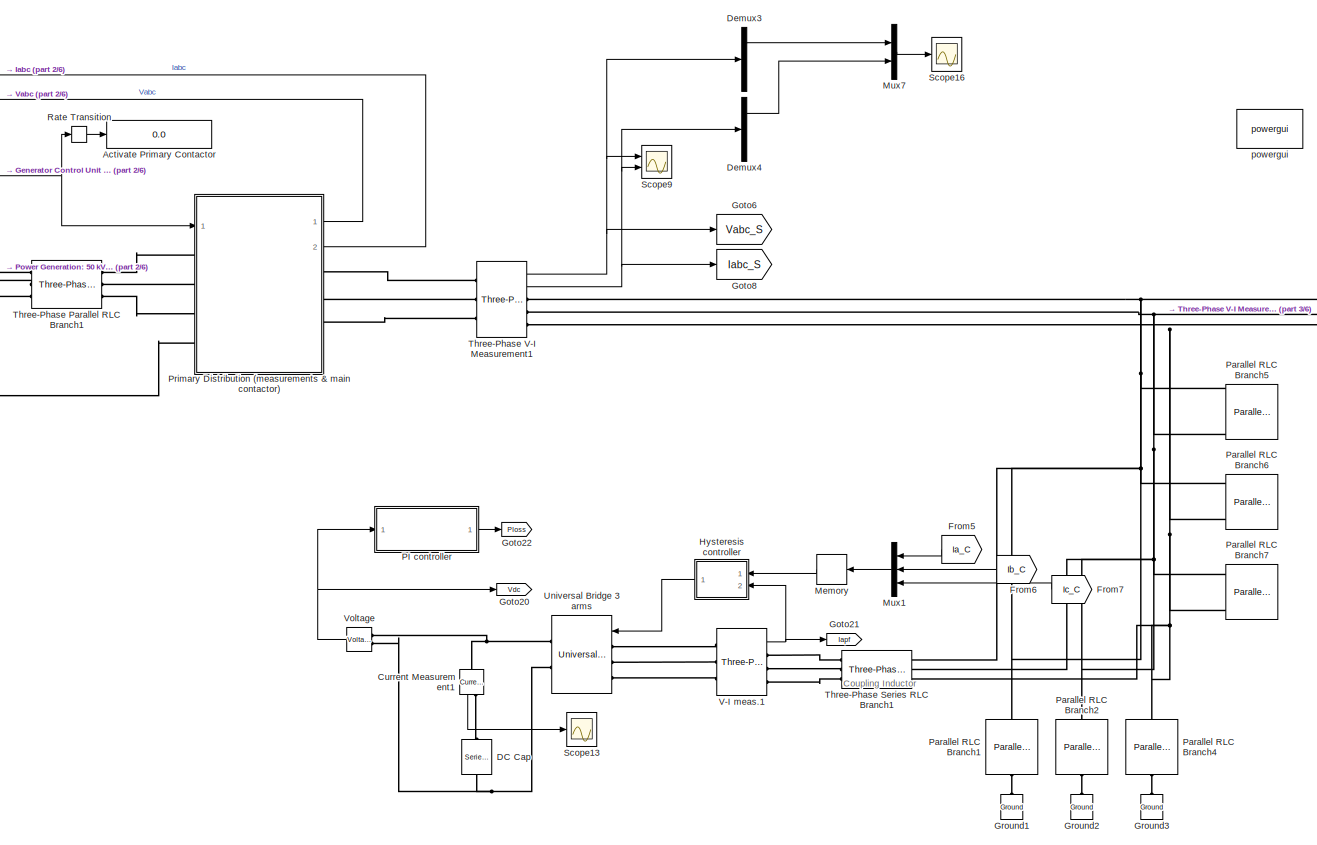
[diagram: root canvas - part 1/6, top center region]
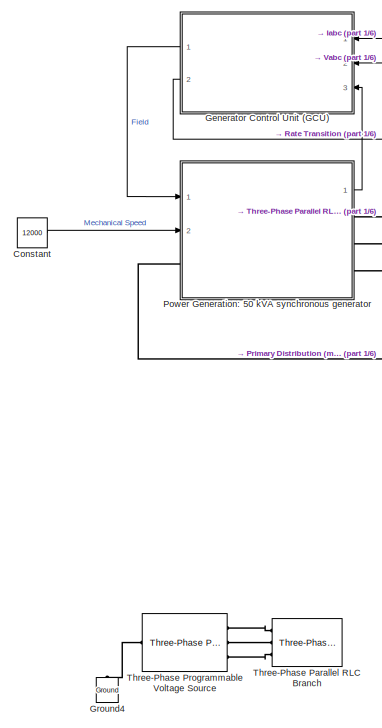
[diagram: root canvas - part 2/6, top left region]
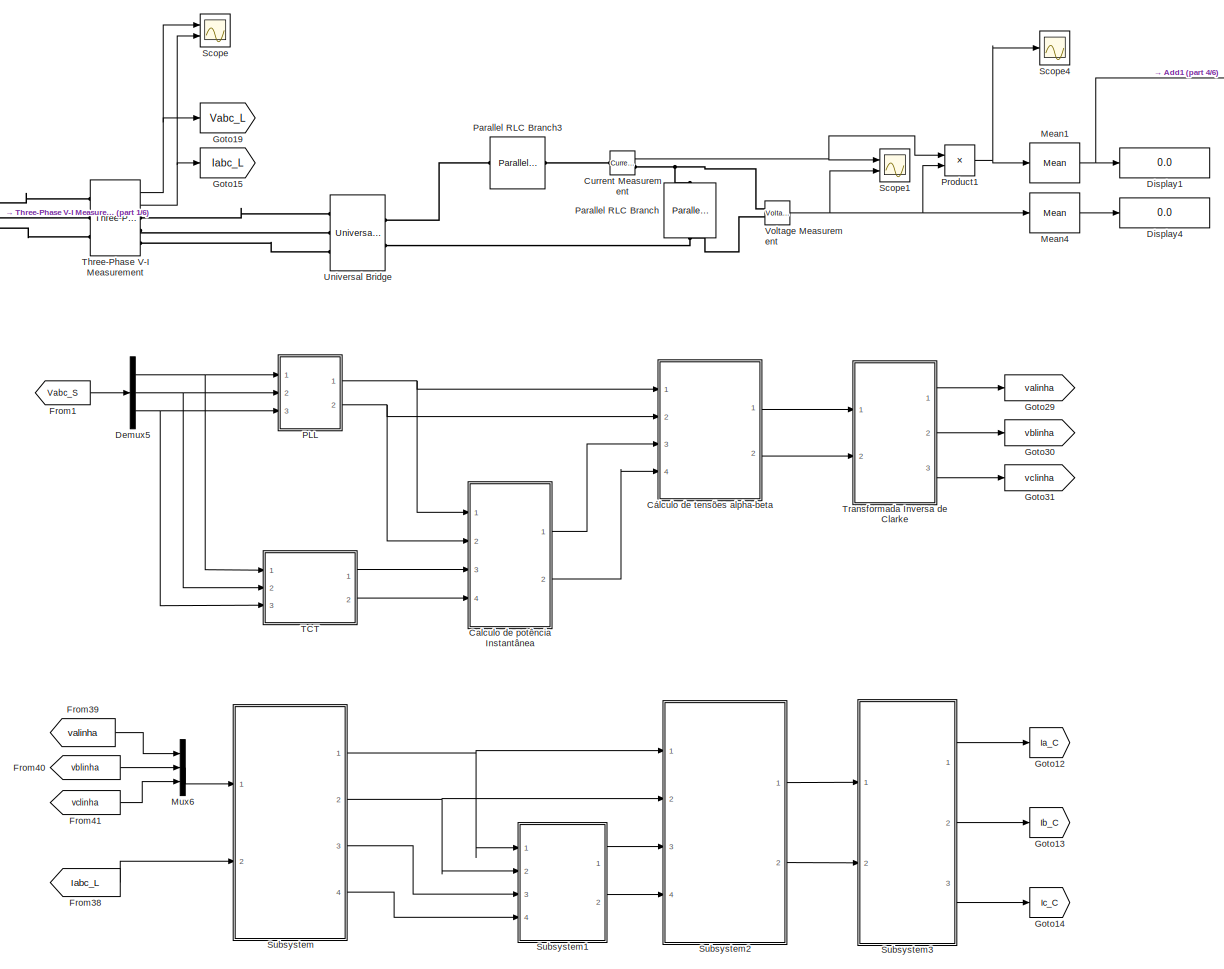
[diagram: root canvas - part 3/6, middle right region]
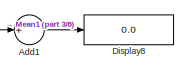
[diagram: root canvas - part 4/6, top right region]
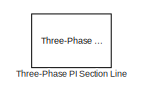
[diagram: root canvas - part 5/6, middle left region]
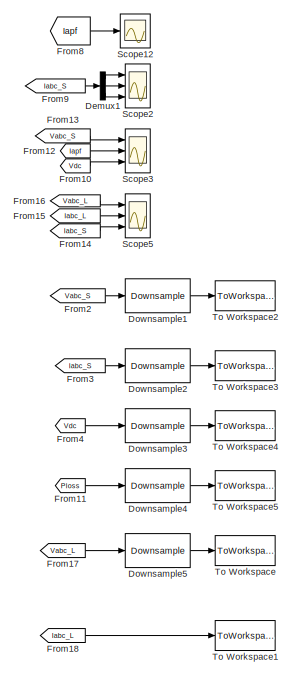
[diagram: root canvas - part 6/6, bottom left region]
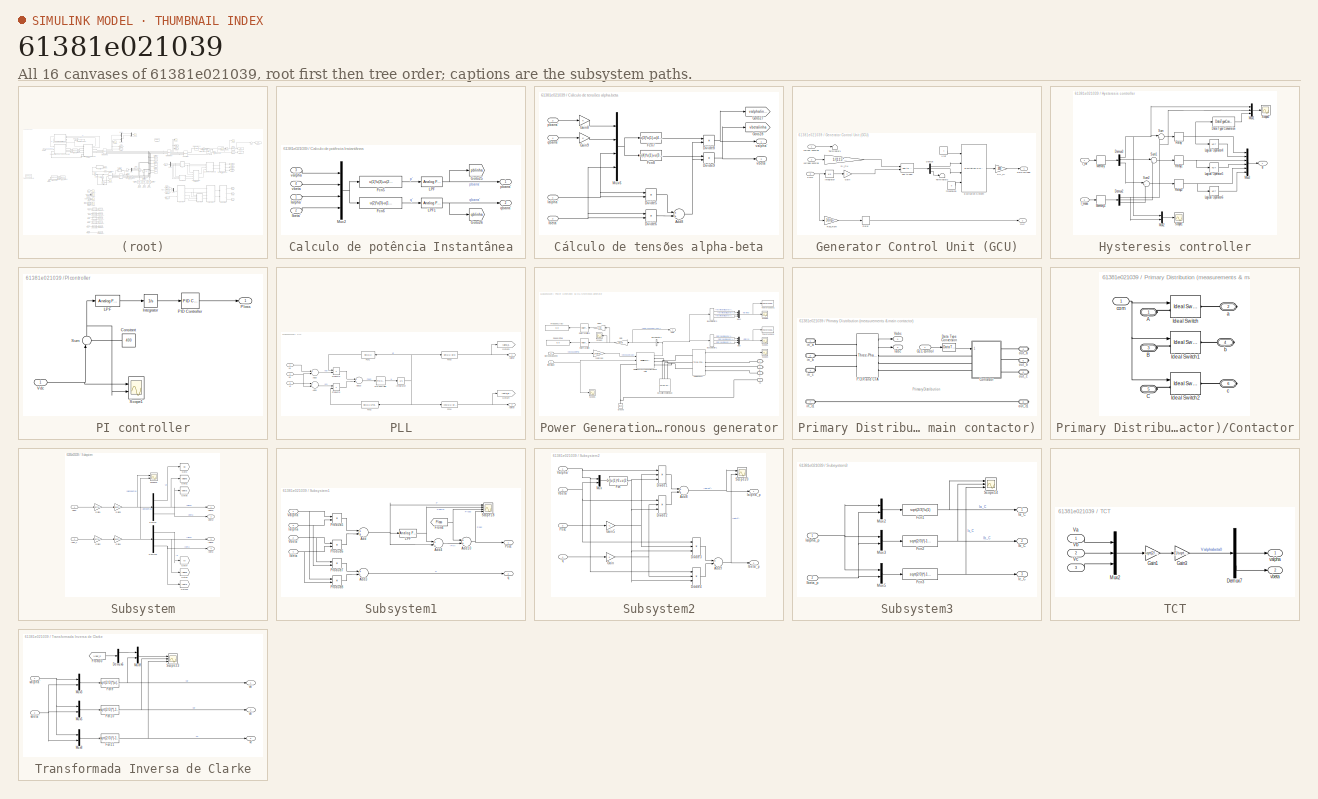
[diagram: thumbnail index - all 16 canvases of the model, root first then tree order]
MODEL slx_61381e021039
KIND model
BLOCK [Display] Activate Primary Contactor
  Decimation = 1
  Ports = [1]
  SampleTime = 1e-2
BLOCK [Sum] Add1
  InputSameDT = off
  Inputs = +
  OutDataTypeStr = Inherit: Inherit via internal rule
  Ports = [1, 1]
  SaturateOnIntegerOverflow = off
BLOCK [SubSystem] Calculo de potência Instantânea
  Ports = [4, 2]
  RequestExecContextInheritance = off
BLOCK [Fcn] Calculo de potência Instantânea/Fcn5
  Expr = u(1)*u(3)+u(2)*u(4)
BLOCK [Fcn] Calculo de potência Instantânea/Fcn6
  Expr = u(2)*u(3)-u(1)*u(4)
BLOCK [Goto] Calculo de potência Instantânea/Goto25
  GotoTag = pblinha
  TagVisibility = global
BLOCK [Goto] Calculo de potência Instantânea/Goto26
  GotoTag = qblinha
  TagVisibility = global
BLOCK [Inport] Calculo de potência Instantânea/Ialpha'
  IconDisplay = Port number
BLOCK [Inport] Calculo de potência Instantânea/Ibeta'
  IconDisplay = Port number
  Port = 2
BLOCK [Reference] Calculo de potência Instantânea/LPF  REF=dsparch4/Analog
Filter Design
  N = 5
  Ports = [1, 1]
  Rp = 2
  Rs = 40
  SourceBlock = dsparch4/Analog\nFilter Design
  SourceType = Analog Filter Design
  Whi = 80
  Wlo = 2*pi*100
  filttype = Lowpass
  method = Butterworth
BLOCK [Reference] Calculo de potência Instantânea/LPF1  REF=dsparch4/Analog
Filter Design
  N = 5
  Ports = [1, 1]
  Rp = 2
  Rs = 40
  SourceBlock = dsparch4/Analog\nFilter Design
  SourceType = Analog Filter Design
  Whi = 80
  Wlo = 2*pi*100
  filttype = Lowpass
  method = Butterworth
BLOCK [Mux] Calculo de potência Instantânea/Mux2
  DisplayOption = bar
  Ports = [4, 1]
BLOCK [Outport] Calculo de potência Instantânea/pbarra'
  IconDisplay = Port number
BLOCK [Outport] Calculo de potência Instantânea/qbarra'
  IconDisplay = Port number
  Port = 2
BLOCK [Inport] Calculo de potência Instantânea/valpha
  IconDisplay = Port number
  Port = 3
BLOCK [Inport] Calculo de potência Instantânea/vbeta
  IconDisplay = Port number
  Port = 4
BLOCK [Constant] Constant
  Value = 12000
BLOCK [Reference] Current Measurement  REF=powerlib/Measurements/Current Measurement
  OutputType = Complex
  PSBequivalent = 0
  PhasorSimulation = off
  Ports = [0, 1, 0, 0, 0, 1, 1]
  SourceBlock = powerlib/Measurements/Current Measurement
  SourceType = Current Measurement
  UserDataPersistent = on
BLOCK [Reference] Current Measurement1  REF=powerlib/Measurements/Current Measurement
  OutputType = Complex
  PSBequivalent = 0
  PhasorSimulation = off
  Ports = [0, 1, 0, 0, 0, 1, 1]
  SourceBlock = powerlib/Measurements/Current Measurement
  SourceType = Current Measurement
  UserDataPersistent = on
BLOCK [SubSystem] Cálculo de tensões alpha-beta
  Ports = [4, 2]
  RequestExecContextInheritance = off
BLOCK [Sum] Cálculo de tensões alpha-beta/Add8
  InputSameDT = off
  OutDataTypeStr = Inherit: Inherit via internal rule
  Ports = [2, 1]
  SaturateOnIntegerOverflow = off
BLOCK [Product] Cálculo de tensões alpha-beta/Divide5
  InputSameDT = off
  Inputs = **
  OutDataTypeStr = Inherit: Inherit via internal rule
  Ports = [2, 1]
  RndMeth = Floor
  SaturateOnIntegerOverflow = off
BLOCK [Product] Cálculo de tensões alpha-beta/Divide6
  InputSameDT = off
  Inputs = **
  OutDataTypeStr = Inherit: Inherit via internal rule
  Ports = [2, 1]
  RndMeth = Floor
  SaturateOnIntegerOverflow = off
BLOCK [Product] Cálculo de tensões alpha-beta/Divide8
  InputSameDT = off
  Inputs = */
  OutDataTypeStr = Inherit: Inherit via internal rule
  Ports = [2, 1]
  RndMeth = Floor
  SaturateOnIntegerOverflow = off
BLOCK [Product] Cálculo de tensões alpha-beta/Divide9
  InputSameDT = off
  Inputs = */
  OutDataTypeStr = Inherit: Inherit via internal rule
  Ports = [2, 1]
  RndMeth = Floor
  SaturateOnIntegerOverflow = off
BLOCK [Fcn] Cálculo de tensões alpha-beta/Fcn7
  Expr = u(3)*u(1)-u(4)*u(2)
BLOCK [Fcn] Cálculo de tensões alpha-beta/Fcn8
  Expr = u(4)*u(1)+u(3)*u(2)
BLOCK [Gain] Cálculo de tensões alpha-beta/Gain8
  OutDataTypeStr = Inherit: Inherit via internal rule
  ParamDataTypeStr = Inherit: Inherit via internal rule
  SaturateOnIntegerOverflow = off
BLOCK [Gain] Cálculo de tensões alpha-beta/Gain9
  OutDataTypeStr = Inherit: Inherit via internal rule
  ParamDataTypeStr = Inherit: Inherit via internal rule
  SaturateOnIntegerOverflow = off
BLOCK [Goto] Cálculo de tensões alpha-beta/Goto27
  GotoTag = valphalinha
  TagVisibility = global
BLOCK [Goto] Cálculo de tensões alpha-beta/Goto28
  GotoTag = vbetalinha
  TagVisibility = global
BLOCK [Inport] Cálculo de tensões alpha-beta/Ialpha'
  IconDisplay = Port number
BLOCK [Inport] Cálculo de tensões alpha-beta/Ibeta'
  IconDisplay = Port number
  Port = 2
BLOCK [Mux] Cálculo de tensões alpha-beta/Mux6
  DisplayOption = bar
  Ports = [4, 1]
BLOCK [Inport] Cálculo de tensões alpha-beta/pbarra'
  IconDisplay = Port number
  Port = 3
BLOCK [Inport] Cálculo de tensões alpha-beta/qbarra'
  IconDisplay = Port number
  Port = 4
BLOCK [Outport] Cálculo de tensões alpha-beta/valpha'
  IconDisplay = Port number
BLOCK [Outport] Cálculo de tensões alpha-beta/vbeta'
  IconDisplay = Port number
  Port = 2
BLOCK [Reference] DC Cap  REF=powerlib/Elements/Series RLC Branch
  BranchType = C
  Capacitance = 50e-6
  Inductance = 1e-3
  InitialCurrent = 0
  InitialVoltage = 350
  LConnTagsString = __new0
  Measurements = None
  Ports = [0, 0, 0, 0, 0, 1, 1]
  RConnTagsString = __new0
  Resistance = 1
  SetiL0 = off
  Setx0 = off
  SourceBlock = powerlib/Elements/Series RLC Branch
  SourceType = Series RLC Branch
BLOCK [Demux] Demux1
  DisplayOption = bar
  Outputs = 3
  Ports = [1, 3]
BLOCK [Demux] Demux3
  DisplayOption = bar
  Outputs = 3
  Ports = [1, 3]
BLOCK [Demux] Demux4
  DisplayOption = bar
  Outputs = 3
  Ports = [1, 3]
BLOCK [Demux] Demux5
  DisplayOption = bar
  Outputs = 3
  Ports = [1, 3]
BLOCK [Display] Display1
  Decimation = 1
  Ports = [1]
BLOCK [Display] Display4
  Decimation = 1
  Ports = [1]
BLOCK [Display] Display8
  Decimation = 1
  Ports = [1]
BLOCK [Reference] Downsample1  REF=dspsigops/Downsample
  InputProcessing = Elements as channels (sample based)
  N = k
  Ports = [1, 1]
  RateOptions = Enforce single-rate processing
  SourceBlock = dspsigops/Downsample
  SourceType = Downsample
  UserDataPersistent = on
  fmode = Maintain input frame size
  ic = 0
  phase = 0
  smode = Allow multirate
BLOCK [Reference] Downsample2  REF=dspsigops/Downsample
  InputProcessing = Elements as channels (sample based)
  N = k
  Ports = [1, 1]
  RateOptions = Enforce single-rate processing
  SourceBlock = dspsigops/Downsample
  SourceType = Downsample
  UserDataPersistent = on
  fmode = Maintain input frame size
  ic = 0
  phase = 0
  smode = Allow multirate
BLOCK [Reference] Downsample3  REF=dspsigops/Downsample
  InputProcessing = Elements as channels (sample based)
  N = k
  Ports = [1, 1]
  RateOptions = Enforce single-rate processing
  SourceBlock = dspsigops/Downsample
  SourceType = Downsample
  UserDataPersistent = on
  fmode = Maintain input frame size
  ic = 0
  phase = 0
  smode = Allow multirate
BLOCK [Reference] Downsample4  REF=dspsigops/Downsample
  InputProcessing = Elements as channels (sample based)
  N = k
  Ports = [1, 1]
  RateOptions = Enforce single-rate processing
  SourceBlock = dspsigops/Downsample
  SourceType = Downsample
  UserDataPersistent = on
  fmode = Maintain input frame size
  ic = 0
  phase = 0
  smode = Allow multirate
BLOCK [Reference] Downsample5  REF=dspsigops/Downsample
  InputProcessing = Elements as channels (sample based)
  N = k
  Ports = [1, 1]
  RateOptions = Enforce single-rate processing
  SourceBlock = dspsigops/Downsample
  SourceType = Downsample
  UserDataPersistent = on
  fmode = Maintain input frame size
  ic = 0
  phase = 0
  smode = Allow multirate
BLOCK [From] From1
  GotoTag = Vabc_S
  TagVisibility = global
BLOCK [From] From10
  CloseFcn = tagdialog Close
  GotoTag = Vdc
  TagVisibility = global
BLOCK [From] From11
  CloseFcn = tagdialog Close
  GotoTag = Ploss
  TagVisibility = global
BLOCK [From] From12
  CloseFcn = tagdialog Close
  GotoTag = Iapf
  TagVisibility = global
BLOCK [From] From13
  CloseFcn = tagdialog Close
  GotoTag = Vabc_S
  TagVisibility = global
BLOCK [From] From14
  CloseFcn = tagdialog Close
  GotoTag = Iabc_S
  TagVisibility = global
BLOCK [From] From15
  CloseFcn = tagdialog Close
  GotoTag = Iabc_L
  TagVisibility = global
BLOCK [From] From16
  CloseFcn = tagdialog Close
  GotoTag = Vabc_L
  TagVisibility = global
BLOCK [From] From17
  CloseFcn = tagdialog Close
  GotoTag = Vabc_L
  TagVisibility = global
BLOCK [From] From18
  CloseFcn = tagdialog Close
  GotoTag = Iabc_L
  TagVisibility = global
BLOCK [From] From2
  CloseFcn = tagdialog Close
  GotoTag = Vabc_S
  TagVisibility = global
BLOCK [From] From3
  CloseFcn = tagdialog Close
  GotoTag = Iabc_S
  TagVisibility = global
BLOCK [From] From38
  GotoTag = Iabc_L
  TagVisibility = global
BLOCK [From] From39
  GotoTag = valinha
  TagVisibility = global
BLOCK [From] From4
  CloseFcn = tagdialog Close
  GotoTag = Vdc
  TagVisibility = global
BLOCK [From] From40
  GotoTag = vblinha
  TagVisibility = global
BLOCK [From] From41
  GotoTag = vclinha
  TagVisibility = global
BLOCK [From] From5
  GotoTag = Ia_C
  TagVisibility = global
BLOCK [From] From6
  GotoTag = Ib_C
  TagVisibility = global
BLOCK [From] From7
  GotoTag = Ic_C
  TagVisibility = global
BLOCK [From] From8
  GotoTag = Iapf
  TagVisibility = global
BLOCK [From] From9
  CloseFcn = tagdialog Close
  GotoTag = Iabc_S
  TagVisibility = global
BLOCK [SubSystem] Generator Control Unit (GCU)
  Ports = [3, 2]
  RequestExecContextInheritance = off
BLOCK [Demux] Generator Control Unit (GCU)/Demux
  DisplayOption = bar
  Outputs = 3
  Ports = [1, 3]
BLOCK [Reference] Generator Control Unit (GCU)/Excitation System  REF=sps_avr/Excitation System
  Ports = [4, 1]
  SourceBlock = sps_avr/Excitation System
  SourceType = Excitation System
  damp = [ 0.001, 0.1 ]
  exc = [ 1, 0 ]
  lim = [ -2, 2, 0 ]
  reg = [ 300, 0.001 ]
  sat = [ 0, 0 ]
  tgr = [ 0, 0 ]
  tr = 20e-3
  v0 = [1 0]
BLOCK [Outport] Generator Control Unit (GCU)/Field voltage
  IconDisplay = Port number
BLOCK [Outport] Generator Control Unit (GCU)/GLC
  IconDisplay = Port number
  Port = 2
BLOCK [Gain] Generator Control Unit (GCU)/Gain
  Gain = 2
  OutDataTypeStr = Inherit: Inherit via internal rule
  ParamDataTypeStr = Inherit: Inherit via internal rule
  SaturateOnIntegerOverflow = off
BLOCK [Integrator] Generator Control Unit (GCU)/Integrator
  Ports = [1, 1]
BLOCK [Inport] Generator Control Unit (GCU)/PMG
  IconDisplay = Port number
  Port = 3
BLOCK [Gain] Generator Control Unit (GCU)/PU_SI
  Gain = 200
  OutDataTypeStr = Inherit: Inherit via internal rule
  ParamDataTypeStr = Inherit: Inherit via internal rule
  SaturateOnIntegerOverflow = off
BLOCK [Gain] Generator Control Unit (GCU)/Rad_Rpm
  Gain = 30/pi
  OutDataTypeStr = Inherit: Inherit via internal rule
  ParamDataTypeStr = Inherit: Inherit via internal rule
  SaturateOnIntegerOverflow = off
BLOCK [Relay] Generator Control Unit (GCU)/Relay
  OffSwitchValue = 8900
  OnSwitchValue = 9000
BLOCK [Gain] Generator Control Unit (GCU)/SI_PU
  Gain = 1/(115*sqrt(2))
  OutDataTypeStr = Inherit: Inherit via internal rule
  ParamDataTypeStr = Inherit: Inherit via internal rule
  SaturateOnIntegerOverflow = off
BLOCK [Terminator] Generator Control Unit (GCU)/Terminator1
BLOCK [Terminator] Generator Control Unit (GCU)/Terminator2
BLOCK [Constant] Generator Control Unit (GCU)/Vref
BLOCK [Reference] Generator Control Unit (GCU)/abc to dq0  REF=powerlib_meascontrol/Transformations/abc to dq0
  Alignment = 90 degrees behind phase A axis
  Ports = [2, 1]
  SourceBlock = powerlib_meascontrol/Transformations/abc to dq0
  SourceType = abc to dq0 Transformation
BLOCK [Inport] Generator Control Unit (GCU)/current sensing
  IconDisplay = Port number
BLOCK [Constant] Generator Control Unit (GCU)/threshold3
  Value = 0
BLOCK [Inport] Generator Control Unit (GCU)/voltage sensing
  IconDisplay = Port number
  Port = 2
BLOCK [Goto] Goto12
  GotoTag = Ia_C
  TagVisibility = global
BLOCK [Goto] Goto13
  GotoTag = Ib_C
  TagVisibility = global
BLOCK [Goto] Goto14
  GotoTag = Ic_C
  TagVisibility = global
BLOCK [Goto] Goto15
  GotoTag = Iabc_L
  TagVisibility = global
BLOCK [Goto] Goto19
  GotoTag = Vabc_L
  TagVisibility = global
BLOCK [Goto] Goto20
  GotoTag = Vdc
  TagVisibility = global
BLOCK [Goto] Goto21
  GotoTag = Iapf
  TagVisibility = global
BLOCK [Goto] Goto22
  GotoTag = Ploss
  TagVisibility = global
BLOCK [Goto] Goto29
  GotoTag = valinha
  TagVisibility = global
BLOCK [Goto] Goto30
  GotoTag = vblinha
  TagVisibility = global
BLOCK [Goto] Goto31
  GotoTag = vclinha
  TagVisibility = global
BLOCK [Goto] Goto6
  GotoTag = Vabc_S
  TagVisibility = global
BLOCK [Goto] Goto8
  GotoTag = Iabc_S
  TagVisibility = global
BLOCK [Reference] Ground1  REF=powerlib/Elements/Ground
  LConnTagsString = a
  Ports = [0, 0, 0, 0, 0, 1]
  SourceBlock = powerlib/Elements/Ground
  SourceType = Ground
BLOCK [Reference] Ground2  REF=powerlib/Elements/Ground
  LConnTagsString = a
  Ports = [0, 0, 0, 0, 0, 1]
  SourceBlock = powerlib/Elements/Ground
  SourceType = Ground
BLOCK [Reference] Ground3  REF=powerlib/Elements/Ground
  LConnTagsString = a
  Ports = [0, 0, 0, 0, 0, 1]
  SourceBlock = powerlib/Elements/Ground
  SourceType = Ground
BLOCK [Reference] Ground4  REF=powerlib/Elements/Ground
  LConnTagsString = a
  Ports = [0, 0, 0, 0, 0, 1]
  SourceBlock = powerlib/Elements/Ground
  SourceType = Ground
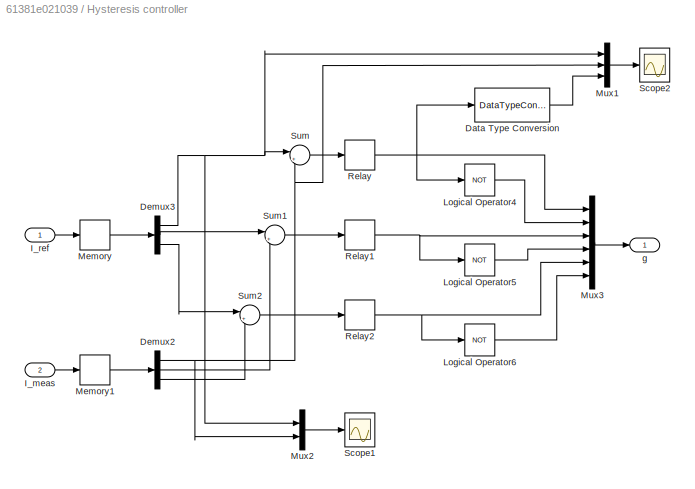
BLOCK [SubSystem] Hysteresis controller
  Ports = [2, 1]
  RequestExecContextInheritance = off
BLOCK [DataTypeConversion] Hysteresis controller/Data Type Conversion
  RndMeth = Floor
  SaturateOnIntegerOverflow = off
BLOCK [Demux] Hysteresis controller/Demux2
  DisplayOption = bar
  Outputs = 3
  Ports = [1, 3]
BLOCK [Demux] Hysteresis controller/Demux3
  DisplayOption = bar
  Outputs = 3
  Ports = [1, 3]
BLOCK [Inport] Hysteresis controller/I_meas
  IconDisplay = Port number
  Port = 2
BLOCK [Inport] Hysteresis controller/I_ref
  IconDisplay = Port number
BLOCK [Logic] Hysteresis controller/Logical Operator4
  AllPortsSameDT = off
  Operator = NOT
  OutDataTypeStr = boolean
  Ports = [1, 1]
BLOCK [Logic] Hysteresis controller/Logical Operator5
  AllPortsSameDT = off
  Operator = NOT
  OutDataTypeStr = boolean
  Ports = [1, 1]
BLOCK [Logic] Hysteresis controller/Logical Operator6
  AllPortsSameDT = off
  Operator = NOT
  OutDataTypeStr = boolean
  Ports = [1, 1]
BLOCK [Memory] Hysteresis controller/Memory
BLOCK [Memory] Hysteresis controller/Memory1
BLOCK [Mux] Hysteresis controller/Mux1
  DisplayOption = bar
  Inputs = 3
  Ports = [3, 1]
BLOCK [Mux] Hysteresis controller/Mux2
  DisplayOption = bar
  Inputs = 2
  Ports = [2, 1]
BLOCK [Mux] Hysteresis controller/Mux3
  DisplayOption = bar
  Inputs = 6
  Ports = [6, 1]
BLOCK [Relay] Hysteresis controller/Relay
  InputProcessing = Elements as channels (sample based)
  OffSwitchValue = -0.05
  OnSwitchValue = 0.05
  OutDataTypeStr = Inherit: Inherit via back propagation
BLOCK [Relay] Hysteresis controller/Relay1
  InputProcessing = Elements as channels (sample based)
  OffSwitchValue = -0.05
  OnSwitchValue = 0.05
  OutDataTypeStr = Inherit: Inherit via back propagation
BLOCK [Relay] Hysteresis controller/Relay2
  InputProcessing = Elements as channels (sample based)
  OffSwitchValue = -0.05
  OnSwitchValue = 0.05
  OutDataTypeStr = Inherit: Inherit via back propagation
BLOCK [Scope] Hysteresis controller/Scope1
  Floating = off
  NumInputPorts = 1
  Ports = [1]
  SaveName = ScopeData30
  ShowLegends = off
  YMax = 5.5
  YMin = -4.5
  ZoomMode = xonly
BLOCK [Scope] Hysteresis controller/Scope2
  Floating = off
  NumInputPorts = 1
  Ports = [1]
  SaveName = ScopeData6
  ShowLegends = off
  YMax = 5.5
  YMin = -4.5
  ZoomMode = xonly
BLOCK [Sum] Hysteresis controller/Sum
  IconShape = round
  InputSameDT = off
  Inputs = |+-
  OutDataTypeStr = Inherit: Inherit via internal rule
  Ports = [2, 1]
  SaturateOnIntegerOverflow = off
BLOCK [Sum] Hysteresis controller/Sum1
  IconShape = round
  InputSameDT = off
  Inputs = |+-
  OutDataTypeStr = Inherit: Inherit via internal rule
  Ports = [2, 1]
  SaturateOnIntegerOverflow = off
BLOCK [Sum] Hysteresis controller/Sum2
  IconShape = round
  InputSameDT = off
  Inputs = |+-
  OutDataTypeStr = Inherit: Inherit via internal rule
  Ports = [2, 1]
  SaturateOnIntegerOverflow = off
BLOCK [Outport] Hysteresis controller/g
  IconDisplay = Port number
BLOCK [Reference] Mean1  REF=powerlib_meascontrol/Measurements/Mean
  Freq = 400
  Ports = [1, 1]
  SourceBlock = powerlib_meascontrol/Measurements/Mean
  SourceType = Mean
  Ts = 0
  Vinit = 0
BLOCK [Reference] Mean4  REF=powerlib_meascontrol/Measurements/Mean
  Freq = 400
  Ports = [1, 1]
  SourceBlock = powerlib_meascontrol/Measurements/Mean
  SourceType = Mean
  Ts = 0
  Vinit = 0
BLOCK [Memory] Memory
BLOCK [Mux] Mux1
  DisplayOption = bar
  Inputs = 3
  Ports = [3, 1]
BLOCK [Mux] Mux6
  DisplayOption = bar
  Inputs = 3
  Ports = [3, 1]
BLOCK [Mux] Mux7
  DisplayOption = bar
  Inputs = 2
  Ports = [2, 1]
BLOCK [SubSystem] PI controller
  Ports = [1, 1]
  RequestExecContextInheritance = off
BLOCK [Constant] PI controller/Constant
  Value = 400
BLOCK [Integrator] PI controller/Integrator
  Ports = [1, 1]
BLOCK [Reference] PI controller/LPF  REF=dsparch4/Analog
Filter Design
  N = 5
  Ports = [1, 1]
  Rp = 2
  Rs = 40
  SourceBlock = dsparch4/Analog\nFilter Design
  SourceType = Analog Filter Design
  Whi = 80
  Wlo = 2*pi*50
  filttype = Lowpass
  method = Butterworth
BLOCK [Reference] PI controller/PID Controller  REF=simulink/Continuous/PID Controller
  AntiWindupMode = none
  Controller = PI
  D = 0
  DOutDataTypeStr = Inherit: Inherit via internal rule
  DOutMax = []
  DOutMin = []
  DParamDataTypeStr = Inherit: Inherit via internal rule
  DParamMax = []
  DParamMin = []
  ExternalReset = none
  FilterContinuousStateAttributes = ''
  FilterMethod = Forward Euler
  FilterOutDataTypeStr = Inherit: Inherit via internal rule
  FilterOutMax = []
  FilterOutMin = []
  FilterRTWStateStorageClass = Auto
  FilterStateMustResolveToSignalObject = off
  Form = Parallel
  I = 5
  IOutDataTypeStr = Inherit: Inherit via internal rule
  IOutMax = []
  IOutMin = []
  IParamDataTypeStr = Inherit: Inherit via internal rule
  IParamMax = []
  IParamMin = []
  IgnoreLimit = off
  InitialConditionForFilter = 0
  InitialConditionForIntegrator = 0
  InitialConditionSource = internal
  IntegratorContinuousStateAttributes = ''
  IntegratorMethod = Forward Euler
  IntegratorOutDataTypeStr = Inherit: Inherit via internal rule
  IntegratorOutMax = []
  IntegratorOutMin = []
  IntegratorRTWStateStorageClass = Auto
  IntegratorStateMustResolveToSignalObject = off
  Kb = 1
  KbOutDataTypeStr = Inherit: Inherit via internal rule
  KbOutMax = []
  KbOutMin = []
  KbParamDataTypeStr = Inherit: Inherit via internal rule
  KbParamMax = []
  KbParamMin = []
  Kt = 1
  KtOutDataTypeStr = Inherit: Inherit via internal rule
  KtOutMax = []
  KtOutMin = []
  KtParamDataTypeStr = Inherit: Inherit via internal rule
  KtParamMax = []
  KtParamMin = []
  LimitOutput = off
  LinearizeAsGain = on
  LockScale = off
  LowerSaturationLimit = -inf
  N = 100
  NOutDataTypeStr = Inherit: Inherit via internal rule
  NOutMax = []
  NOutMin = []
  NParamDataTypeStr = Inherit: Inherit via internal rule
  NParamMax = []
  NParamMin = []
  P = 10
  POutDataTypeStr = Inherit: Inherit via internal rule
  POutMax = []
  POutMin = []
  PParamDataTypeStr = Inherit: Inherit via internal rule
  PParamMax = []
  PParamMin = []
  Ports = [1, 1]
  RndMeth = Floor
  SampleTime = -1
  SaturateOnIntegerOverflow = off
  SaturationOutDataTypeStr = Inherit: Same as input
  SaturationOutMax = []
  SaturationOutMin = []
  SourceBlock = simulink/Continuous/PID Controller
  SourceType = PID 1dof
  SumAccumDataTypeStr = Inherit: Inherit via internal rule
  SumDAccumDataTypeStr = Inherit: Inherit via internal rule
  SumDOutDataTypeStr = Inherit: Inherit via internal rule
  SumDOutMax = []
  SumDOutMin = []
  SumI1AccumDataTypeStr = Inherit: Inherit via internal rule
  SumI1OutDataTypeStr = Inherit: Inherit via internal rule
  SumI1OutMax = []
  SumI1OutMin = []
  SumI2AccumDataTypeStr = Inherit: Inherit via internal rule
  SumI2OutDataTypeStr = Inherit: Inherit via internal rule
  SumI2OutMax = []
  SumI2OutMin = []
  SumI3AccumDataTypeStr = Inherit: Inherit via internal rule
  SumI3OutDataTypeStr = Inherit: Inherit via internal rule
  SumI3OutMax = []
  SumI3OutMin = []
  SumOutDataTypeStr = Inherit: Inherit via internal rule
  SumOutMax = []
  SumOutMin = []
  TimeDomain = Continuous-time
  TrackingMode = off
  UpperSaturationLimit = inf
  ZeroCross = on
BLOCK [Outport] PI controller/Ploss
  IconDisplay = Port number
BLOCK [Scope] PI controller/Scope1
  DataFormat = StructureWithTime
  Floating = off
  MaxDataPoints = 500000
  NumInputPorts = 2
  Ports = [2]
  SampleTime = 0
  SaveName = psb3phPWM1_str1
  SaveToWorkspace = on
  ShowLegends = off
  TimeRange = 0.025
  YMax = 402~21
  YMin = 379~-2
  ZoomMode = yonly
BLOCK [Sum] PI controller/Sum
  IconShape = round
  InputSameDT = off
  Inputs = |-+
  OutDataTypeStr = Inherit: Inherit via internal rule
  Ports = [2, 1]
  SaturateOnIntegerOverflow = off
BLOCK [Inport] PI controller/Vdc
  IconDisplay = Port number
BLOCK [SubSystem] PLL
  Ports = [3, 2]
  RequestExecContextInheritance = off
BLOCK [Sum] PLL/Add10
  InputSameDT = off
  OutDataTypeStr = Inherit: Inherit via internal rule
  Ports = [2, 1]
  SaturateOnIntegerOverflow = off
BLOCK [Sum] PLL/Add3
  InputSameDT = off
  Inputs = +-
  OutDataTypeStr = Inherit: Inherit via internal rule
  Ports = [2, 1]
  SaturateOnIntegerOverflow = off
BLOCK [Sum] PLL/Add4
  InputSameDT = off
  Inputs = +-
  OutDataTypeStr = Inherit: Inherit via internal rule
  Ports = [2, 1]
  SaturateOnIntegerOverflow = off
BLOCK [Fcn] PLL/Fcn1
  Expr = sin(u(1))
BLOCK [Fcn] PLL/Fcn2
  Expr = sin(u(1)+2*pi/3)
BLOCK [Fcn] PLL/Fcn3
  Expr = sin(u(1)-pi/2)
BLOCK [Fcn] PLL/Fcn4
  Expr = -cos(u(1)-pi/2)
BLOCK [Goto] PLL/Goto23
  GotoTag = Ialpha_linha
  TagVisibility = global
BLOCK [Goto] PLL/Goto24
  GotoTag = Ibeta_linha
  TagVisibility = global
BLOCK [Outport] PLL/Ialpha'
  IconDisplay = Port number
BLOCK [Outport] PLL/Ibeta'
  IconDisplay = Port number
  Port = 2
BLOCK [Integrator] PLL/Integrator
  Ports = [1, 1]
BLOCK [Reference] PLL/PID Controller  REF=simulink/Continuous/PID Controller
  AntiWindupMode = none
  Controller = PI
  D = 0
  DOutDataTypeStr = Inherit: Inherit via internal rule
  DOutMax = []
  DOutMin = []
  DParamDataTypeStr = Inherit: Inherit via internal rule
  DParamMax = []
  DParamMin = []
  ExternalReset = none
  FilterContinuousStateAttributes = ''
  FilterMethod = Forward Euler
  FilterOutDataTypeStr = Inherit: Inherit via internal rule
  FilterOutMax = []
  FilterOutMin = []
  FilterRTWStateStorageClass = Auto
  FilterStateMustResolveToSignalObject = off
  Form = Parallel
  I = 1
  IOutDataTypeStr = Inherit: Inherit via internal rule
  IOutMax = []
  IOutMin = []
  IParamDataTypeStr = Inherit: Inherit via internal rule
  IParamMax = []
  IParamMin = []
  IgnoreLimit = off
  InitialConditionForFilter = 0
  InitialConditionForIntegrator = 0
  InitialConditionSource = internal
  IntegratorContinuousStateAttributes = ''
  IntegratorMethod = Forward Euler
  IntegratorOutDataTypeStr = Inherit: Inherit via internal rule
  IntegratorOutMax = []
  IntegratorOutMin = []
  IntegratorRTWStateStorageClass = Auto
  IntegratorStateMustResolveToSignalObject = off
  Kb = 1
  KbOutDataTypeStr = Inherit: Inherit via internal rule
  KbOutMax = []
  KbOutMin = []
  KbParamDataTypeStr = Inherit: Inherit via internal rule
  KbParamMax = []
  KbParamMin = []
  Kt = 1
  KtOutDataTypeStr = Inherit: Inherit via internal rule
  KtOutMax = []
  KtOutMin = []
  KtParamDataTypeStr = Inherit: Inherit via internal rule
  KtParamMax = []
  KtParamMin = []
  LimitOutput = off
  LinearizeAsGain = on
  LockScale = off
  LowerSaturationLimit = -inf
  N = 100
  NOutDataTypeStr = Inherit: Inherit via internal rule
  NOutMax = []
  NOutMin = []
  NParamDataTypeStr = Inherit: Inherit via internal rule
  NParamMax = []
  NParamMin = []
  P = 30
  POutDataTypeStr = Inherit: Inherit via internal rule
  POutMax = []
  POutMin = []
  PParamDataTypeStr = Inherit: Inherit via internal rule
  PParamMax = []
  PParamMin = []
  Ports = [1, 1]
  RndMeth = Floor
  SampleTime = -1
  SaturateOnIntegerOverflow = off
  SaturationOutDataTypeStr = Inherit: Same as input
  SaturationOutMax = []
  SaturationOutMin = []
  SourceBlock = simulink/Continuous/PID Controller
  SourceType = PID 1dof
  SumAccumDataTypeStr = Inherit: Inherit via internal rule
  SumDAccumDataTypeStr = Inherit: Inherit via internal rule
  SumDOutDataTypeStr = Inherit: Inherit via internal rule
  SumDOutMax = []
  SumDOutMin = []
  SumI1AccumDataTypeStr = Inherit: Inherit via internal rule
  SumI1OutDataTypeStr = Inherit: Inherit via internal rule
  SumI1OutMax = []
  SumI1OutMin = []
  SumI2AccumDataTypeStr = Inherit: Inherit via internal rule
  SumI2OutDataTypeStr = Inherit: Inherit via internal rule
  SumI2OutMax = []
  SumI2OutMin = []
  SumI3AccumDataTypeStr = Inherit: Inherit via internal rule
  SumI3OutDataTypeStr = Inherit: Inherit via internal rule
  SumI3OutMax = []
  SumI3OutMin = []
  SumOutDataTypeStr = Inherit: Inherit via internal rule
  SumOutMax = []
  SumOutMin = []
  TimeDomain = Continuous-time
  TrackingMode = off
  UpperSaturationLimit = inf
  ZeroCross = on
BLOCK [Product] PLL/Product5
  InputSameDT = off
  OutDataTypeStr = Inherit: Inherit via internal rule
  Ports = [2, 1]
  RndMeth = Floor
  SaturateOnIntegerOverflow = off
BLOCK [Product] PLL/Product6
  InputSameDT = off
  OutDataTypeStr = Inherit: Inherit via internal rule
  Ports = [2, 1]
  RndMeth = Floor
  SaturateOnIntegerOverflow = off
BLOCK [Inport] PLL/Va
  IconDisplay = Port number
BLOCK [Inport] PLL/Vb
  IconDisplay = Port number
  Port = 2
BLOCK [Inport] PLL/Vc
  IconDisplay = Port number
  Port = 3
BLOCK [Reference] Parallel RLC Branch  REF=powerlib/Elements/Parallel RLC Branch
  AttributesFormatString = \n
  BranchType = RC
  Capacitance = 30e-6
  Inductance = 1e-3
  InitialCurrent = 0
  InitialVoltage = 0
  LConnTagsString = a
  Measurements = None
  Ports = [0, 0, 0, 0, 0, 1, 1]
  RConnTagsString = __new0
  Resistance = 50
  SetiL0 = off
  Setx0 = off
  SourceBlock = powerlib/Elements/Parallel RLC Branch
  SourceType = Parallel RLC Branch
BLOCK [Reference] Parallel RLC Branch1  REF=powerlib/Elements/Parallel RLC Branch
  AttributesFormatString = \n
  BranchType = RC
  Capacitance = 3.9789e-08
  Inductance = 1e-3
  InitialCurrent = 0
  InitialVoltage = 0
  LConnTagsString = a
  Measurements = None
  Ports = [0, 0, 0, 0, 0, 1, 1]
  RConnTagsString = __new0
  Resistance = 10e3
  SetiL0 = off
  Setx0 = off
  SourceBlock = powerlib/Elements/Parallel RLC Branch
  SourceType = Parallel RLC Branch
BLOCK [Reference] Parallel RLC Branch2  REF=powerlib/Elements/Parallel RLC Branch
  AttributesFormatString = \n
  BranchType = RC
  Capacitance = 3.9789e-08
  Inductance = 1e-3
  InitialCurrent = 0
  InitialVoltage = 0
  LConnTagsString = a
  Measurements = None
  Ports = [0, 0, 0, 0, 0, 1, 1]
  RConnTagsString = __new0
  Resistance = 10e3
  SetiL0 = off
  Setx0 = off
  SourceBlock = powerlib/Elements/Parallel RLC Branch
  SourceType = Parallel RLC Branch
BLOCK [Reference] Parallel RLC Branch3  REF=powerlib/Elements/Parallel RLC Branch
  AttributesFormatString = \n
  BranchType = L
  Capacitance = 30e-6
  Inductance = 10e-3
  InitialCurrent = 0
  InitialVoltage = 0
  LConnTagsString = a
  Measurements = None
  Ports = [0, 0, 0, 0, 0, 1, 1]
  RConnTagsString = __new0
  Resistance = 1
  SetiL0 = off
  Setx0 = off
  SourceBlock = powerlib/Elements/Parallel RLC Branch
  SourceType = Parallel RLC Branch
BLOCK [Reference] Parallel RLC Branch4  REF=powerlib/Elements/Parallel RLC Branch
  AttributesFormatString = \n
  BranchType = RC
  Capacitance = 3.9789e-08
  Inductance = 1e-3
  InitialCurrent = 0
  InitialVoltage = 0
  LConnTagsString = a
  Measurements = None
  Ports = [0, 0, 0, 0, 0, 1, 1]
  RConnTagsString = __new0
  Resistance = 10e3
  SetiL0 = off
  Setx0 = off
  SourceBlock = powerlib/Elements/Parallel RLC Branch
  SourceType = Parallel RLC Branch
BLOCK [Reference] Parallel RLC Branch5  REF=powerlib/Elements/Parallel RLC Branch
  AttributesFormatString = \n
  BranchType = C
  Capacitance = .1e-6
  Inductance = 1e-3
  InitialCurrent = 0
  InitialVoltage = 0
  LConnTagsString = a
  Measurements = None
  Ports = [0, 0, 0, 0, 0, 1, 1]
  RConnTagsString = __new0
  Resistance = 10e3
  SetiL0 = off
  Setx0 = off
  SourceBlock = powerlib/Elements/Parallel RLC Branch
  SourceType = Parallel RLC Branch
BLOCK [Reference] Parallel RLC Branch6  REF=powerlib/Elements/Parallel RLC Branch
  AttributesFormatString = \n
  BranchType = C
  Capacitance = .1e-6
  Inductance = 1e-3
  InitialCurrent = 0
  InitialVoltage = 0
  LConnTagsString = a
  Measurements = None
  Ports = [0, 0, 0, 0, 0, 1, 1]
  RConnTagsString = __new0
  Resistance = 10e3
  SetiL0 = off
  Setx0 = off
  SourceBlock = powerlib/Elements/Parallel RLC Branch
  SourceType = Parallel RLC Branch
BLOCK [Reference] Parallel RLC Branch7  REF=powerlib/Elements/Parallel RLC Branch
  AttributesFormatString = \n
  BranchType = C
  Capacitance = .1e-6
  Inductance = 1e-3
  InitialCurrent = 0
  InitialVoltage = 0
  LConnTagsString = a
  Measurements = None
  Ports = [0, 0, 0, 0, 0, 1, 1]
  RConnTagsString = __new0
  Resistance = 10e3
  SetiL0 = off
  Setx0 = off
  SourceBlock = powerlib/Elements/Parallel RLC Branch
  SourceType = Parallel RLC Branch
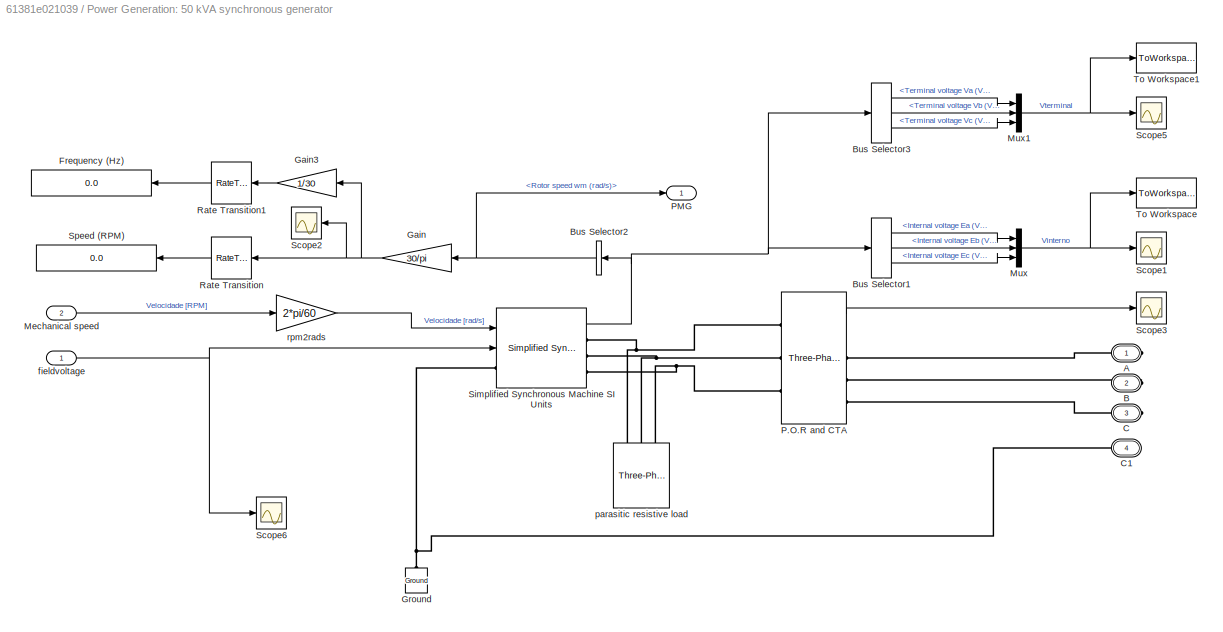
BLOCK [SubSystem] Power Generation: 50 kVA synchronous generator
  Ports = [2, 1, 0, 0, 0, 1, 3]
  RequestExecContextInheritance = off
BLOCK [PMIOPort] Power Generation: 50 kVA synchronous generator/A
  Port = 1
  Side = Right
  Tag = PMCPort
BLOCK [PMIOPort] Power Generation: 50 kVA synchronous generator/B
  Port = 2
  Side = Right
  Tag = PMCPort
BLOCK [BusSelector] Power Generation: 50 kVA synchronous generator/Bus Selector1
  OutputSignals = Internal voltage Ea (V),Internal voltage Eb (V),Internal voltage Ec (V)
  Ports = [1, 3]
BLOCK [BusSelector] Power Generation: 50 kVA synchronous generator/Bus Selector2
  OutputSignals = Rotor speed wm (rad/s)
  Ports = [1, 1]
BLOCK [BusSelector] Power Generation: 50 kVA synchronous generator/Bus Selector3
  OutputSignals = Terminal voltage Va (V),Terminal voltage Vb (V),Terminal voltage Vc (V)
  Ports = [1, 3]
BLOCK [PMIOPort] Power Generation: 50 kVA synchronous generator/C
  Port = 3
  Side = Right
  Tag = PMCPort
BLOCK [PMIOPort] Power Generation: 50 kVA synchronous generator/C1
  Port = 4
  Side = Left
  Tag = PMCPort
BLOCK [Display] Power Generation: 50 kVA synchronous generator/Frequency (Hz)
  Decimation = 1
  Ports = [1]
  SampleTime = 1e-2
BLOCK [Gain] Power Generation: 50 kVA synchronous generator/Gain
  Gain = 30/pi
  OutDataTypeStr = Inherit: Inherit via internal rule
  ParamDataTypeStr = Inherit: Inherit via internal rule
  SaturateOnIntegerOverflow = off
BLOCK [Gain] Power Generation: 50 kVA synchronous generator/Gain3
  Gain = 1/30
  OutDataTypeStr = Inherit: Inherit via internal rule
  ParamDataTypeStr = Inherit: Inherit via internal rule
  SaturateOnIntegerOverflow = off
BLOCK [Reference] Power Generation: 50 kVA synchronous generator/Ground  REF=powerlib/Elements/Ground
  LConnTagsString = a
  Ports = [0, 0, 0, 0, 0, 1]
  SourceBlock = powerlib/Elements/Ground
  SourceType = Ground
BLOCK [Inport] Power Generation: 50 kVA synchronous generator/Mechanical speed
  IconDisplay = Port number
  Port = 2
BLOCK [Mux] Power Generation: 50 kVA synchronous generator/Mux
  DisplayOption = bar
  Inputs = 3
  Ports = [3, 1]
BLOCK [Mux] Power Generation: 50 kVA synchronous generator/Mux1
  DisplayOption = bar
  Inputs = 3
  Ports = [3, 1]
BLOCK [Reference] Power Generation: 50 kVA synchronous generator/P.O.R  and CTA  REF=powerlib/Measurements/Three-Phase
V-I Measurement
  CurrentMeasurement = yes
  Ipu = off
  LabelI = Iabc
  LabelV = Vabc
  OutputType = Complex
  PSBequivalent = 0
  Pbase = 100e6
  PhasorSimulation = off
  Ports = [0, 2, 0, 0, 0, 3, 3]
  SetLabelI = off
  SetLabelV = off
  SourceBlock = powerlib/Measurements/Three-Phase\nV-I Measurement
  SourceType = Three-Phase VI Measurement
  Vbase = 500e3
  VoltageMeasurement = phase-to-ground
  Vpu = off
  VpuLL = off
BLOCK [Outport] Power Generation: 50 kVA synchronous generator/PMG
  IconDisplay = Port number
BLOCK [RateTransition] Power Generation: 50 kVA synchronous generator/Rate Transition
  OutPortSampleTime = Ts
  OutPortSampleTimeOpt = Inherit
BLOCK [RateTransition] Power Generation: 50 kVA synchronous generator/Rate Transition1
  OutPortSampleTime = Ts
  OutPortSampleTimeOpt = Inherit
BLOCK [Scope] Power Generation: 50 kVA synchronous generator/Scope1
  DataFormat = StructureWithTime
  Decimation = 100
  Floating = off
  NumInputPorts = 1
  Ports = [1]
  SampleTime = 1e-3
  ShowLegends = off
  TimeRange = 0.01
  YMax = 120
  YMin = -110
  ZoomMode = xonly
BLOCK [Scope] Power Generation: 50 kVA synchronous generator/Scope2
  DataFormat = StructureWithTime
  Decimation = 100
  Floating = off
  NumInputPorts = 1
  Ports = [1]
  SampleTime = 1e-3
  SaveName = ScopeData3
  ShowLegends = off
  TimeRange = 1
  YMax = 12600
  YMin = 11400
BLOCK [Scope] Power Generation: 50 kVA synchronous generator/Scope3
  DataFormat = StructureWithTime
  Decimation = 100
  Floating = off
  NumInputPorts = 1
  Ports = [1]
  SampleTime = 1e-3
  SaveName = ScopeData1
  ShowLegends = off
  TimeRange = 0.005
  YMax = 200
  YMin = -200
BLOCK [Scope] Power Generation: 50 kVA synchronous generator/Scope5
  DataFormat = StructureWithTime
  Decimation = 100
  Floating = off
  NumInputPorts = 1
  Ports = [1]
  SampleTime = 1e-3
  SaveName = ScopeData4
  ShowLegends = off
  TimeRange = 0.005
  YMax = 200
  YMin = -225
BLOCK [Scope] Power Generation: 50 kVA synchronous generator/Scope6
  DataFormat = StructureWithTime
  Decimation = 100
  Floating = off
  LimitDataPoints = off
  NumInputPorts = 1
  Ports = [1]
  SampleTime = 1e-3
  SaveName = ScopeData5
  ShowLegends = off
  TimeRange = 0.005
  YMax = 420
  YMin = 380
BLOCK [Reference] Power Generation: 50 kVA synchronous generator/Simplified Synchronous Machine SI Units  REF=powerlib/Machines/Simplified Synchronous
Machine SI Units
  BusType = PV
  ConnectionType = 4-wire Y
  InitialConditions = [0,0 0,0,0 0,0,0]
  InternalRL = [0.0204  0.08104e-3]
  LoadFlowParameters = [1,0,0,0,0]
  MeasurementBus = off
  Mechanical = [0.02 0 2]
  MechanicalLoad = Speed w
  NominalParameters = [50e3 200 400]
  PLF = 0
  Ports = [2, 1, 0, 0, 0, 1, 3]
  Pref = 0
  QLF = 0
  Qmax = +inf
  Qmin = -inf
  Qref = 0
  SourceBlock = powerlib/Machines/Simplified Synchronous\nMachine SI Units
  SourceType = Simplified Synchronous Machine
  TsBlock = -1
  TsPowergui = 0
  Units = 1
BLOCK [Display] Power Generation: 50 kVA synchronous generator/Speed (RPM)
  Decimation = 1
  Ports = [1]
  SampleTime = 1e-2
BLOCK [ToWorkspace] Power Generation: 50 kVA synchronous generator/To Workspace
  FixptAsFi = on
  MaxDataPoints = inf
  Ports = [1]
  SampleTime = -1
  Save2DSignal = 3-D array (concatenate along third dimension)
  SaveFormat = Structure With Time
  VariableName = Vint
BLOCK [ToWorkspace] Power Generation: 50 kVA synchronous generator/To Workspace1
  FixptAsFi = on
  MaxDataPoints = inf
  Ports = [1]
  SampleTime = -1
  Save2DSignal = 3-D array (concatenate along third dimension)
  SaveFormat = Structure With Time
  VariableName = Vterminal
BLOCK [Inport] Power Generation: 50 kVA synchronous generator/fieldvoltage
  IconDisplay = Port number
BLOCK [Reference] Power Generation: 50 kVA synchronous generator/parasitic resistive load  REF=powerlib/Elements/Three-Phase
Series RLC Load
  ActivePower = 5000
  AttributesFormatString = \n
  CapacitivePower = 0
  Configuration = Y (grounded)
  InductivePower = 0
  LConnTagsString = A|B|C
  LoadType = constant Z
  Measurements = None
  NominalFrequency = 400
  NominalVoltage = 200
  Ports = [0, 0, 0, 0, 0, 3]
  SourceBlock = powerlib/Elements/Three-Phase\nSeries RLC Load
  SourceType = Three-Phase Series RLC Load
BLOCK [Gain] Power Generation: 50 kVA synchronous generator/rpm2rads
  Gain = 2*pi/60
  OutDataTypeStr = Inherit: Inherit via internal rule
  ParamDataTypeStr = Inherit: Inherit via internal rule
  SaturateOnIntegerOverflow = off
BLOCK [SubSystem] Primary Distribution (measurements & main contactor)
  Ports = [1, 2, 0, 0, 0, 4, 4]
  RequestExecContextInheritance = off
BLOCK [SubSystem] Primary Distribution (measurements & main contactor)/Contactor
  Ports = [1, 0, 0, 0, 0, 3, 3]
  RequestExecContextInheritance = off
BLOCK [PMIOPort] Primary Distribution (measurements & main contactor)/Contactor/A
  Port = 1
  Side = Left
BLOCK [PMIOPort] Primary Distribution (measurements & main contactor)/Contactor/B
  Port = 3
  Side = Left
BLOCK [PMIOPort] Primary Distribution (measurements & main contactor)/Contactor/C
  Port = 5
  Side = Left
BLOCK [Reference] Primary Distribution (measurements & main contactor)/Contactor/Ideal Switch  REF=powerlib/Power
Electronics/Ideal Switch
  Cs = inf
  IC = 0
  Lon = 0
  Measurements = off
  Ports = [1, 0, 0, 0, 0, 1, 1]
  Ron = 0.001
  Rs = 1e3
  SourceBlock = powerlib/Power\nElectronics/Ideal Switch
  SourceType = Ideal Switch
BLOCK [Reference] Primary Distribution (measurements & main contactor)/Contactor/Ideal Switch1  REF=powerlib/Power
Electronics/Ideal Switch
  Cs = inf
  IC = 0
  Lon = 0
  Measurements = off
  Ports = [1, 0, 0, 0, 0, 1, 1]
  Ron = 0.001
  Rs = 1e3
  SourceBlock = powerlib/Power\nElectronics/Ideal Switch
  SourceType = Ideal Switch
BLOCK [Reference] Primary Distribution (measurements & main contactor)/Contactor/Ideal Switch2  REF=powerlib/Power
Electronics/Ideal Switch
  Cs = inf
  IC = 0
  Lon = 0
  Measurements = off
  Ports = [1, 0, 0, 0, 0, 1, 1]
  Ron = 0.001
  Rs = 1e3
  SourceBlock = powerlib/Power\nElectronics/Ideal Switch
  SourceType = Ideal Switch
BLOCK [PMIOPort] Primary Distribution (measurements & main contactor)/Contactor/a
  Port = 2
  Side = Right
BLOCK [PMIOPort] Primary Distribution (measurements & main contactor)/Contactor/b
  Port = 4
  Side = Right
BLOCK [PMIOPort] Primary Distribution (measurements & main contactor)/Contactor/c
  Port = 6
  Side = Right
BLOCK [Inport] Primary Distribution (measurements & main contactor)/Contactor/com
  IconDisplay = Port number
BLOCK [DataTypeConversion] Primary Distribution (measurements & main contactor)/Data Type Conversion
  RndMeth = Floor
  SaturateOnIntegerOverflow = off
BLOCK [Inport] Primary Distribution (measurements & main contactor)/GLC control
  IconDisplay = Port number
BLOCK [Outport] Primary Distribution (measurements & main contactor)/Iabc
  IconDisplay = Port number
  Port = 2
BLOCK [Reference] Primary Distribution (measurements & main contactor)/P.O.R  and CTA  REF=powerlib/Measurements/Three-Phase
V-I Measurement
  CurrentMeasurement = yes
  Ipu = off
  LabelI = Iabc
  LabelV = Vabc
  OutputType = Complex
  PSBequivalent = 0
  Pbase = 100e6
  PhasorSimulation = off
  Ports = [0, 2, 0, 0, 0, 3, 3]
  SetLabelI = off
  SetLabelV = off
  SourceBlock = powerlib/Measurements/Three-Phase\nV-I Measurement
  SourceType = Three-Phase VI Measurement
  Vbase = 500e3
  VoltageMeasurement = phase-to-ground
  Vpu = off
  VpuLL = off
BLOCK [Outport] Primary Distribution (measurements & main contactor)/Vabc
  IconDisplay = Port number
BLOCK [PMIOPort] Primary Distribution (measurements & main contactor)/in_a
  Port = 1
  Side = Left
BLOCK [PMIOPort] Primary Distribution (measurements & main contactor)/in_b
  Port = 2
  Side = Left
BLOCK [PMIOPort] Primary Distribution (measurements & main contactor)/in_c
  Port = 3
  Side = Left
BLOCK [PMIOPort] Primary Distribution (measurements & main contactor)/in_c1
  Port = 7
  Side = Left
BLOCK [PMIOPort] Primary Distribution (measurements & main contactor)/out_a
  Port = 4
  Side = Right
BLOCK [PMIOPort] Primary Distribution (measurements & main contactor)/out_b
  Port = 5
  Side = Right
BLOCK [PMIOPort] Primary Distribution (measurements & main contactor)/out_c
  Port = 6
  Side = Right
BLOCK [PMIOPort] Primary Distribution (measurements & main contactor)/out_c1
  Port = 8
  Side = Right
BLOCK [Product] Product1
  InputSameDT = off
  OutDataTypeStr = Inherit: Inherit via internal rule
  Ports = [2, 1]
  RndMeth = Floor
  SaturateOnIntegerOverflow = off
BLOCK [RateTransition] Rate Transition
  OutPortSampleTime = Ts
  OutPortSampleTimeOpt = Inherit
BLOCK [Scope] Scope
  Floating = off
  NumInputPorts = 2
  Ports = [2]
  ShowLegends = off
  YMax = 200~25
  YMin = -200~-25
  ZoomMode = xonly
BLOCK [Scope] Scope1
  Floating = off
  NumInputPorts = 2
  Ports = [2]
  SaveName = ScopeData1
  ShowLegends = off
  YMax = 20~500
  YMin = -0.00561601~0
  ZoomMode = yonly
BLOCK [Scope] Scope12
  Floating = off
  NumInputPorts = 1
  Ports = [1]
  SaveName = ScopeData12
  ShowLegends = off
  YMax = 200
  YMin = -150
  ZoomMode = xonly
BLOCK [Scope] Scope13
  Floating = off
  NumInputPorts = 1
  Ports = [1]
  SaveName = ScopeData31
  ShowLegends = off
  YMax = 35
  YMin = -17.5
  ZoomMode = xonly
BLOCK [Scope] Scope16
  Floating = off
  NumInputPorts = 1
  Ports = [1]
  SaveName = ScopeData17
  ShowLegends = off
  YMax = 450
  YMin = -250
  ZoomMode = xonly
BLOCK [Scope] Scope2
  DataFormat = StructureWithTime
  Floating = off
  MaxDataPoints = 500000
  NumInputPorts = 3
  Ports = [3]
  SampleTime = 0
  SaveName = Isource
  SaveToWorkspace = on
  ShowLegends = off
  TimeRange = 0.015
  YMax = 40~40~40
  YMin = -40~-40~-40
  ZoomMode = xonly
BLOCK [Scope] Scope3
  DataFormat = StructureWithTime
  Floating = off
  MaxDataPoints = 500000
  NumInputPorts = 3
  Ports = [3]
  SampleTime = 0
  SaveName = Vs_Iapf_Vdc
  SaveToWorkspace = on
  ShowLegends = off
  TimeRange = 0.015
  YMax = 1~20~575
  YMin = -1~-20~275
  ZoomMode = xonly
BLOCK [Scope] Scope4
  Floating = off
  NumInputPorts = 1
  Ports = [1]
  SaveName = ScopeData2
  ShowLegends = off
  YMax = 8000
  YMin = 0
  ZoomMode = yonly
BLOCK [Scope] Scope5
  DataFormat = StructureWithTime
  Floating = off
  MaxDataPoints = 500000
  NumInputPorts = 3
  Ports = [3]
  SampleTime = 0
  SaveName = Vs_Iapf_Vdc1
  SaveToWorkspace = on
  ShowLegends = off
  TimeRange = 0.015
  YMax = 175~5.5~8
  YMin = -175~-5.5~-9
  ZoomMode = xonly
BLOCK [Scope] Scope9
  Floating = off
  NumInputPorts = 2
  Ports = [2]
  SaveName = ScopeData9
  ShowLegends = off
  YMax = 175~7
  YMin = -175~-7
  ZoomMode = xonly
BLOCK [SubSystem] Subsystem
  Ports = [2, 4]
  RequestExecContextInheritance = off
BLOCK [Demux] Subsystem/Demux
  DisplayOption = bar
  Outputs = 3
  Ports = [1, 3]
BLOCK [Demux] Subsystem/Demux6
  DisplayOption = bar
  Outputs = 3
  Ports = [1, 3]
BLOCK [Gain] Subsystem/Gain1
  Gain = sqrt(2/3)
  OutDataTypeStr = Inherit: Inherit via internal rule
  ParamDataTypeStr = Inherit: Inherit via internal rule
  SaturateOnIntegerOverflow = off
BLOCK [Gain] Subsystem/Gain2
  Gain = sqrt(2/3)
  OutDataTypeStr = Inherit: Inherit via internal rule
  ParamDataTypeStr = Inherit: Inherit via internal rule
  SaturateOnIntegerOverflow = off
BLOCK [Gain] Subsystem/Gain3
  Gain = [1/sqrt(2), 1/sqrt(2), 1/sqrt(2); 1, -1/2, -1/2; 0, sqrt(3)/2, -sqrt(3)/2]
  Multiplication = Matrix(K*u)
  OutDataTypeStr = Inherit: Inherit via internal rule
  ParamDataTypeStr = Inherit: Inherit via internal rule
  SaturateOnIntegerOverflow = off
BLOCK [Gain] Subsystem/Gain4
  Gain = [1/sqrt(2), 1/sqrt(2), 1/sqrt(2); 1, -1/2, -1/2; 0, sqrt(3)/2, -sqrt(3)/2]
  Multiplication = Matrix(K*u)
  OutDataTypeStr = Inherit: Inherit via internal rule
  ParamDataTypeStr = Inherit: Inherit via internal rule
  SaturateOnIntegerOverflow = off
BLOCK [Goto] Subsystem/Goto
  GotoTag = V0
BLOCK [Goto] Subsystem/Goto1
  GotoTag = Valpha
BLOCK [Goto] Subsystem/Goto16
  GotoTag = Ibeta
BLOCK [Goto] Subsystem/Goto5
  GotoTag = Vbeta
BLOCK [Goto] Subsystem/Goto7
  GotoTag = I0
BLOCK [Goto] Subsystem/Goto9
  GotoTag = Ialpha
BLOCK [Inport] Subsystem/Iabc_L
  IconDisplay = Port number
  Port = 2
BLOCK [Outport] Subsystem/Ialpha
  IconDisplay = Port number
  Port = 3
BLOCK [Outport] Subsystem/Ibeta
  IconDisplay = Port number
  Port = 4
BLOCK [Scope] Subsystem/Scope15
  Floating = off
  NumInputPorts = 2
  Ports = [2]
  SaveName = ScopeData33
  ShowLegends = off
  YMax = 400~200
  YMin = -600~-200
  ZoomMode = xonly
BLOCK [Inport] Subsystem/Vabc'
  IconDisplay = Port number
BLOCK [Outport] Subsystem/Valpha'
  IconDisplay = Port number
BLOCK [Outport] Subsystem/Vbeta'
  IconDisplay = Port number
  Port = 2
BLOCK [SubSystem] Subsystem1
  Ports = [4, 2]
  RequestExecContextInheritance = off
BLOCK [Sum] Subsystem1/Add
  InputSameDT = off
  OutDataTypeStr = Inherit: Inherit via internal rule
  Ports = [2, 1]
  SaturateOnIntegerOverflow = off
BLOCK [Sum] Subsystem1/Add10
  InputSameDT = off
  OutDataTypeStr = Inherit: Inherit via internal rule
  Ports = [2, 1]
  SaturateOnIntegerOverflow = off
BLOCK [Sum] Subsystem1/Add3
  InputSameDT = off
  Inputs = +-
  OutDataTypeStr = Inherit: Inherit via internal rule
  Ports = [2, 1]
  SaturateOnIntegerOverflow = off
BLOCK [Sum] Subsystem1/Add4
  InputSameDT = off
  Inputs = +-
  OutDataTypeStr = Inherit: Inherit via internal rule
  Ports = [2, 1]
  SaturateOnIntegerOverflow = off
BLOCK [From] Subsystem1/From4
  GotoTag = Ploss
  TagVisibility = global
BLOCK [Inport] Subsystem1/Ialpha
  IconDisplay = Port number
  Port = 3
BLOCK [Inport] Subsystem1/Ibeta
  IconDisplay = Port number
  Port = 4
BLOCK [Reference] Subsystem1/LPF  REF=dsparch4/Analog
Filter Design
  N = 5
  Ports = [1, 1]
  Rp = 2
  Rs = 40
  SourceBlock = dsparch4/Analog\nFilter Design
  SourceType = Analog Filter Design
  Whi = 80
  Wlo = 2*pi*100
  filttype = Lowpass
  method = Butterworth
BLOCK [Outport] Subsystem1/Posc
  IconDisplay = Port number
BLOCK [Product] Subsystem1/Product5
  InputSameDT = off
  OutDataTypeStr = Inherit: Inherit via internal rule
  Ports = [2, 1]
  RndMeth = Floor
  SaturateOnIntegerOverflow = off
BLOCK [Product] Subsystem1/Product6
  InputSameDT = off
  OutDataTypeStr = Inherit: Inherit via internal rule
  Ports = [2, 1]
  RndMeth = Floor
  SaturateOnIntegerOverflow = off
BLOCK [Product] Subsystem1/Product7
  InputSameDT = off
  OutDataTypeStr = Inherit: Inherit via internal rule
  Ports = [2, 1]
  RndMeth = Floor
  SaturateOnIntegerOverflow = off
BLOCK [Product] Subsystem1/Product8
  InputSameDT = off
  OutDataTypeStr = Inherit: Inherit via internal rule
  Ports = [2, 1]
  RndMeth = Floor
  SaturateOnIntegerOverflow = off
BLOCK [Scope] Subsystem1/Scope18
  Floating = off
  NumInputPorts = 4
  Ports = [4]
  SaveName = ScopeData35
  ShowLegends = off
  YMax = 1800~1700~60~500
  YMin = -100~0~0~-1600
  ZoomMode = yonly
BLOCK [Inport] Subsystem1/Valpha'
  IconDisplay = Port number
BLOCK [Inport] Subsystem1/Vbeta'
  IconDisplay = Port number
  Port = 2
BLOCK [Outport] Subsystem1/q
  IconDisplay = Port number
  Port = 2
BLOCK [SubSystem] Subsystem2
  Ports = [4, 2]
  RequestExecContextInheritance = off
BLOCK [Sum] Subsystem2/Add8
  InputSameDT = off
  OutDataTypeStr = Inherit: Inherit via internal rule
  Ports = [2, 1]
  SaturateOnIntegerOverflow = off
BLOCK [Sum] Subsystem2/Add9
  InputSameDT = off
  Inputs = +-
  OutDataTypeStr = Inherit: Inherit via internal rule
  Ports = [2, 1]
  SaturateOnIntegerOverflow = off
BLOCK [Product] Subsystem2/Divide1
  InputSameDT = off
  Inputs = ***
  OutDataTypeStr = Inherit: Inherit via internal rule
  Ports = [3, 1]
  RndMeth = Floor
  SaturateOnIntegerOverflow = off
BLOCK [Product] Subsystem2/Divide2
  InputSameDT = off
  Inputs = ***
  OutDataTypeStr = Inherit: Inherit via internal rule
  Ports = [3, 1]
  RndMeth = Floor
  SaturateOnIntegerOverflow = off
BLOCK [Product] Subsystem2/Divide3
  InputSameDT = off
  Inputs = ***
  OutDataTypeStr = Inherit: Inherit via internal rule
  Ports = [3, 1]
  RndMeth = Floor
  SaturateOnIntegerOverflow = off
BLOCK [Product] Subsystem2/Divide4
  InputSameDT = off
  Inputs = ***
  OutDataTypeStr = Inherit: Inherit via internal rule
  Ports = [3, 1]
  RndMeth = Floor
  SaturateOnIntegerOverflow = off
BLOCK [Fcn] Subsystem2/Fcn
  Expr = 1/(u(1)^2+u(2)^2)
BLOCK [Gain] Subsystem2/Gain
  OutDataTypeStr = Inherit: Inherit via internal rule
  ParamDataTypeStr = Inherit: Inherit via internal rule
  SaturateOnIntegerOverflow = off
BLOCK [Gain] Subsystem2/Gain5
  Gain = -1
  OutDataTypeStr = Inherit: Inherit via internal rule
  ParamDataTypeStr = Inherit: Inherit via internal rule
  SaturateOnIntegerOverflow = off
BLOCK [Outport] Subsystem2/Ialpha_p
  IconDisplay = Port number
BLOCK [Outport] Subsystem2/Ibeta_p
  IconDisplay = Port number
  Port = 2
BLOCK [Mux] Subsystem2/Mux
  DisplayOption = bar
  Inputs = 2
  Ports = [2, 1]
BLOCK [Inport] Subsystem2/Posc
  IconDisplay = Port number
  Port = 3
BLOCK [Scope] Subsystem2/Scope20
  Floating = off
  NumInputPorts = 2
  Ports = [2]
  SaveName = ScopeData37
  ShowLegends = off
  YMax = 8~2e+12
  YMin = -8~-1e+12
  ZoomMode = xonly
BLOCK [Inport] Subsystem2/Valpha'
  IconDisplay = Port number
BLOCK [Inport] Subsystem2/Vbeta'
  IconDisplay = Port number
  Port = 2
BLOCK [Inport] Subsystem2/q
  IconDisplay = Port number
  Port = 4
BLOCK [SubSystem] Subsystem3
  Ports = [2, 3]
  RequestExecContextInheritance = off
BLOCK [Fcn] Subsystem3/Fcn1
  Expr = sqrt(2/3)*u(1)
BLOCK [Fcn] Subsystem3/Fcn2
  Expr = sqrt(2/3)*(-1/2*u(1)+sqrt(3)/2*u(2))
BLOCK [Fcn] Subsystem3/Fcn3
  Expr = sqrt(2/3)*(-1/2*u(1)-sqrt(3)/2*u(2))
BLOCK [Outport] Subsystem3/Ia_C
  IconDisplay = Port number
BLOCK [Inport] Subsystem3/Ialpha_p
  IconDisplay = Port number
BLOCK [Outport] Subsystem3/Ib_C
  IconDisplay = Port number
  Port = 2
BLOCK [Inport] Subsystem3/Ibeta_p
  IconDisplay = Port number
  Port = 2
BLOCK [Outport] Subsystem3/Ic_C
  IconDisplay = Port number
  Port = 3
BLOCK [Mux] Subsystem3/Mux2
  DisplayOption = bar
  Inputs = 2
  Ports = [2, 1]
BLOCK [Mux] Subsystem3/Mux3
  DisplayOption = bar
  Inputs = 2
  Ports = [2, 1]
BLOCK [Mux] Subsystem3/Mux5
  DisplayOption = bar
  Inputs = 2
  Ports = [2, 1]
BLOCK [Scope] Subsystem3/Scope14
  Floating = off
  NumInputPorts = 3
  Ports = [3]
  SaveName = ScopeData32
  ShowLegends = off
  TimeRange = 0.08
  YMax = 4.5~4~4.5
  YMin = -4~-4.5~-2
  ZoomMode = xonly
BLOCK [SubSystem] TCT
  Ports = [3, 2]
  RequestExecContextInheritance = off
BLOCK [Demux] TCT/Demux7
  DisplayOption = bar
  Outputs = 3
  Ports = [1, 3]
BLOCK [Gain] TCT/Gain1
  Gain = sqrt(2/3)
  OutDataTypeStr = Inherit: Inherit via internal rule
  ParamDataTypeStr = Inherit: Inherit via internal rule
  SaturateOnIntegerOverflow = off
BLOCK [Gain] TCT/Gain3
  Gain = [1/sqrt(2), 1/sqrt(2), 1/sqrt(2); 1, -1/2, -1/2; 0, sqrt(3)/2, -sqrt(3)/2]
  Multiplication = Matrix(K*u)
  OutDataTypeStr = Inherit: Inherit via internal rule
  ParamDataTypeStr = Inherit: Inherit via internal rule
  SaturateOnIntegerOverflow = off
BLOCK [Mux] TCT/Mux2
  DisplayOption = bar
  Inputs = 3
  Ports = [3, 1]
BLOCK [Inport] TCT/Va
  IconDisplay = Port number
BLOCK [Inport] TCT/Vb
  IconDisplay = Port number
  Port = 2
BLOCK [Inport] TCT/Vc
  IconDisplay = Port number
  Port = 3
BLOCK [Outport] TCT/valpha
  IconDisplay = Port number
BLOCK [Outport] TCT/vbeta
  IconDisplay = Port number
  Port = 2
BLOCK [Reference] Three-Phase PI Section Line  REF=powerlib/Elements/Three-Phase
PI Section Line
  AttributesFormatString = \n
  Capacitances = [12.74e-9 7.751e-9]
  Frequency = 400
  Inductances = [ 0.9337e-3  4.1264e-3]
  LConnTagsString = a|b|c
  Length = 0.005
  Ports = [0, 0, 0, 0, 0, 3, 3]
  RConnTagsString = A|B|C
  Resistances = [ 0.01273 0.3864]
  SourceBlock = powerlib/Elements/Three-Phase\nPI Section Line
  SourceType = Three-Phase PI Section Line
BLOCK [Reference] Three-Phase Parallel RLC Branch  REF=powerlib/Elements/Three-Phase
Parallel RLC Branch
  AttributesFormatString = \n
  BranchType = RL
  Capacitance = 1e-6
  Inductance = 6e-6
  LConnTagsString = A|B|C
  Measurements = None
  Ports = [0, 0, 0, 0, 0, 3, 3]
  RConnTagsString = A|B|C
  Resistance = 0.0367e-3
  SourceBlock = powerlib/Elements/Three-Phase\nParallel RLC Branch
  SourceType = Three-Phase Parallel RLC Branch
BLOCK [Reference] Three-Phase Parallel RLC Branch1  REF=powerlib/Elements/Three-Phase
Parallel RLC Branch
  AttributesFormatString = \n
  BranchType = RL
  Capacitance = 1e-6
  Inductance = 6e-3
  LConnTagsString = A|B|C
  Measurements = None
  Ports = [0, 0, 0, 0, 0, 3, 3]
  RConnTagsString = A|B|C
  Resistance = 0.367
  SourceBlock = powerlib/Elements/Three-Phase\nParallel RLC Branch
  SourceType = Three-Phase Parallel RLC Branch
BLOCK [Reference] Three-Phase Programmable Voltage Source  REF=powerlib/Electrical
Sources/Three-Phase
Programmable
Voltage Source
  Amplitudes = [1 0.8 1.2 1.0]
  BusType = swing
  HarmonicA = [3 0.2 -25 0]
  HarmonicB = [2 0.15 35 2]
  HarmonicGeneration = off
  Ports = [0, 0, 0, 0, 0, 1, 3]
  PositiveSequence = [115*sqrt(3)  0 400]
  Pref = 0
  Qmax = inf
  Qmin = -inf
  Qref = 0
  SourceBlock = powerlib/Electrical\nSources/Three-Phase\nProgrammable\nVoltage Source
  SourceType = Three-Phase Programmable Voltage Source
  TimeValues = [0 0.1 0.15 0.2]
  Timing = [0.05  3]
  VariationEntity = None
  VariationFrequency = 2
  VariationMagnitude = 0.3
  VariationPhaseA = off
  VariationRate = 10
  VariationStep = 0.5
  VariationTiming = [1 2]
  VariationType = Table of time-amplitude pairs
  VariationTypeAlt = Step
BLOCK [Reference] Three-Phase Series RLC Branch1  REF=powerlib/Elements/Three-Phase
Series RLC Branch
  AttributesFormatString = \n
  BranchType = L
  Capacitance = .2e-3
  Inductance = 2e-4
  LConnTagsString = A|B|C
  Measurements = None
  Ports = [0, 0, 0, 0, 0, 3, 3]
  RConnTagsString = A|B|C
  Resistance = 1e9
  SourceBlock = powerlib/Elements/Three-Phase\nSeries RLC Branch
  SourceType = Three-Phase Series RLC Branch
BLOCK [Reference] Three-Phase V-I Measurement  REF=powerlib/Measurements/Three-Phase
V-I Measurement
  CurrentMeasurement = yes
  Ipu = off
  LabelI = Iabc
  LabelV = Vabc
  OutputType = Complex
  PSBequivalent = 0
  Pbase = 100e6
  PhasorSimulation = off
  Ports = [0, 2, 0, 0, 0, 3, 3]
  SetLabelI = off
  SetLabelV = off
  SourceBlock = powerlib/Measurements/Three-Phase\nV-I Measurement
  SourceType = Three-Phase VI Measurement
  Vbase = 500e3
  VoltageMeasurement = phase-to-ground
  Vpu = off
  VpuLL = off
BLOCK [Reference] Three-Phase V-I Measurement1  REF=powerlib/Measurements/Three-Phase
V-I Measurement
  CurrentMeasurement = yes
  Ipu = off
  LabelI = Iabc
  LabelV = Vabc
  OutputType = Complex
  PSBequivalent = 0
  Pbase = 100e6
  PhasorSimulation = off
  Ports = [0, 2, 0, 0, 0, 3, 3]
  SetLabelI = off
  SetLabelV = off
  SourceBlock = powerlib/Measurements/Three-Phase\nV-I Measurement
  SourceType = Three-Phase VI Measurement
  Vbase = 500e3
  VoltageMeasurement = phase-to-ground
  Vpu = off
  VpuLL = off
BLOCK [ToWorkspace] To Workspace
  FixptAsFi = on
  MaxDataPoints = inf
  Ports = [1]
  SampleTime = -1
  Save2DSignal = 3-D array (concatenate along third dimension)
  SaveFormat = Structure With Time
  VariableName = Vabc_L
BLOCK [ToWorkspace] To Workspace1
  FixptAsFi = on
  MaxDataPoints = inf
  Ports = [1]
  SampleTime = -1
  Save2DSignal = 3-D array (concatenate along third dimension)
  SaveFormat = Structure With Time
  VariableName = Iabc_L
BLOCK [ToWorkspace] To Workspace2
  FixptAsFi = on
  MaxDataPoints = inf
  Ports = [1]
  SampleTime = -1
  Save2DSignal = 3-D array (concatenate along third dimension)
  SaveFormat = Structure With Time
  VariableName = Vabc_S
BLOCK [ToWorkspace] To Workspace3
  FixptAsFi = on
  MaxDataPoints = inf
  Ports = [1]
  SampleTime = -1
  Save2DSignal = 3-D array (concatenate along third dimension)
  SaveFormat = Structure With Time
  VariableName = Iabc_S
BLOCK [ToWorkspace] To Workspace4
  FixptAsFi = on
  MaxDataPoints = inf
  Ports = [1]
  SampleTime = -1
  Save2DSignal = 3-D array (concatenate along third dimension)
  SaveFormat = Structure With Time
  VariableName = Vdc
BLOCK [ToWorkspace] To Workspace5
  FixptAsFi = on
  MaxDataPoints = inf
  Ports = [1]
  SampleTime = -1
  Save2DSignal = 3-D array (concatenate along third dimension)
  SaveFormat = Structure With Time
  VariableName = Ploss
BLOCK [SubSystem] Transformada Inversa de Clarke
  Ports = [2, 3]
  RequestExecContextInheritance = off
BLOCK [Demux] Transformada Inversa de Clarke/Demux6
  DisplayOption = bar
  Outputs = 3
  Ports = [1, 3]
BLOCK [Fcn] Transformada Inversa de Clarke/Fcn10
  Expr = sqrt(2/3)*(-1/2*u(1)+sqrt(3)/2*u(2))
BLOCK [Fcn] Transformada Inversa de Clarke/Fcn11
  Expr = sqrt(2/3)*(-1/2*u(1)-sqrt(3)/2*u(2))
BLOCK [Fcn] Transformada Inversa de Clarke/Fcn9
  Expr = sqrt(2/3)*(u(1) + 0*u(2))
BLOCK [From] Transformada Inversa de Clarke/From30
  GotoTag = Vabc_S
  TagVisibility = global
BLOCK [Mux] Transformada Inversa de Clarke/Mux3
  DisplayOption = bar
  Inputs = 2
  Ports = [2, 1]
BLOCK [Mux] Transformada Inversa de Clarke/Mux5
  DisplayOption = bar
  Inputs = 2
  Ports = [2, 1]
BLOCK [Mux] Transformada Inversa de Clarke/Mux8
  DisplayOption = bar
  Inputs = 2
  Ports = [2, 1]
BLOCK [Mux] Transformada Inversa de Clarke/Mux9
  DisplayOption = bar
  Inputs = 2
  Ports = [2, 1]
BLOCK [Scope] Transformada Inversa de Clarke/Scope23
  Floating = off
  NumInputPorts = 3
  Ports = [3]
  SaveName = ScopeData28
  ShowLegends = off
  YMax = 200~200~200
  YMin = -200~-200~-200
  ZoomMode = xonly
BLOCK [Outport] Transformada Inversa de Clarke/va'
  IconDisplay = Port number
BLOCK [Inport] Transformada Inversa de Clarke/valpha'
  IconDisplay = Port number
BLOCK [Outport] Transformada Inversa de Clarke/vb'
  IconDisplay = Port number
  Port = 2
BLOCK [Inport] Transformada Inversa de Clarke/vbeta'
  IconDisplay = Port number
  Port = 2
BLOCK [Outport] Transformada Inversa de Clarke/vc'
  IconDisplay = Port number
  Port = 3
BLOCK [Reference] Universal Bridge  REF=powerlib/Power
Electronics/Universal Bridge
  Arms = 3
  Device = Diodes
  ForwardVoltage = 0
  ForwardVoltages = [  0  0  ]
  GTOparameters = [ 10e-6 , 20e-6 ]
  IGBTparameters = [ 1e-6 , 2e-6 ]
  Lon = 0
  Measurements = None
  Measurements_2 = None
  Ports = [0, 0, 0, 0, 0, 3, 2]
  Ron = 1e-6
  SnubberCapacitance = inf
  SnubberResistance = 1e5
  SourceBlock = powerlib/Power\nElectronics/Universal Bridge
  SourceType = Universal Bridge
  converterType = Rectifier
BLOCK [Reference] Universal Bridge 3 arms  REF=powerlib/Power
Electronics/Universal Bridge
  Arms = 3
  AttributesFormatString = \n
  Device = MOSFET / Diodes
  ForwardVoltage = .8
  ForwardVoltages = [  1  1  ]
  GTOparameters = [ 10e-6 , 20e-6 ]
  IGBTparameters = [ 1e-6 , 2e-6 ]
  Lon = 0
  Measurements = None
  Measurements_2 = None
  Ports = [1, 0, 0, 0, 0, 3, 2]
  Ron = 1e-4
  SnubberCapacitance = inf
  SnubberResistance = 10000
  SourceBlock = powerlib/Power\nElectronics/Universal Bridge
  SourceType = Universal Bridge
  converterType = Rectifier
BLOCK [Reference] V-I meas.1  REF=powerlib/Measurements/Three-Phase
V-I Measurement
  CurrentMeasurement = yes
  Ipu = off
  LabelI = Iabc
  LabelV = Vnm
  OutputType = Complex
  PSBequivalent = 0
  Pbase = 100e6
  PhasorSimulation = off
  Ports = [0, 1, 0, 0, 0, 3, 3]
  SetLabelI = off
  SetLabelV = on
  SourceBlock = powerlib/Measurements/Three-Phase\nV-I Measurement
  SourceType = Three-Phase VI Measurement
  Vbase = 500e3
  VoltageMeasurement = phase-to-phase
  Vpu = off
  VpuLL = off
BLOCK [Reference] Voltage  REF=powerlib/Measurements/Voltage Measurement
  OutputType = Complex
  PSBequivalent = 0
  PhasorSimulation = off
  Ports = [0, 1, 0, 0, 0, 2]
  SourceBlock = powerlib/Measurements/Voltage Measurement
  SourceType = Voltage Measurement
BLOCK [Reference] Voltage Measurement  REF=powerlib/Measurements/Voltage Measurement
  OutputType = Complex
  PSBequivalent = 0
  PhasorSimulation = off
  Ports = [0, 1, 0, 0, 0, 2]
  SourceBlock = powerlib/Measurements/Voltage Measurement
  SourceType = Voltage Measurement
  UserDataPersistent = on
BLOCK [Reference] powergui  REF=powerlib/powergui
  DisableRonSwitches = off
  DisableSnubberDevices = off
  DisableVfSwitches = off
  DisplayEquations = off
  DisplayStyle = 1
  EnableUseOfTLC = off
  ErrMax = 1e-4
  Frange = [0:2:500]
  FreqAxis = off
  FunctionMessages = off
  HookPort = off
  Interpol = off
  Iterations = 50
  MaxFrequency = 1000
  Pbase = 100e6
  Ports = []
  Priority = 1
  ResistiveCurrentMeasurement = off
  RestoreLinks = warning
  RmsSteady = 1
  SPID = off
  SampleTime = 2e-7
  ShowGrid = off
  SolverType = Backward Euler
  SourceBlock = powerlib/powergui
  SourceType = PSB option menu block
  StartTime = 0.0
  SwTol = 0
  Ts = 100
  UnitsV = kV
  UnitsW = MW
  UserDataPersistent = on
  Xlog = on
  Ylog = off
  ZoomFFT = off
  cycles = 1
  display = off
  echomessages = off
  frequency = 60
  frequencyindice = 400
  frequencyindicesteady = 1
  fundamental = 60
  methode = off
  save = off
  structure = 0
  variable = ZData
  x0status = blocks
ANNOTATION (root): Coupling Inductor
ANNOTATION Primary Distribution (measurements & main contactor): Primary Distribution
LINE Add1:1 -> Display8:1
LINE Calculo de potência Instantânea/Fcn5:1 -> Calculo de potência Instantânea/LPF:1
LINE Calculo de potência Instantânea/Fcn6:1 -> Calculo de potência Instantânea/LPF1:1
LINE Calculo de potência Instantânea/Ialpha':1 -> Calculo de potência Instantânea/Mux2:3
LINE Calculo de potência Instantânea/Ibeta':1 -> Calculo de potência Instantânea/Mux2:4
NET Calculo de potência Instantânea/LPF1:1 -> Calculo de potência Instantânea/Goto26:1, Calculo de potência Instantânea/qbarra':1
NET Calculo de potência Instantânea/LPF:1 -> Calculo de potência Instantânea/Goto25:1, Calculo de potência Instantânea/pbarra':1
NET Calculo de potência Instantânea/Mux2:1 -> Calculo de potência Instantânea/Fcn5:1, Calculo de potência Instantânea/Fcn6:1
LINE Calculo de potência Instantânea/valpha:1 -> Calculo de potência Instantânea/Mux2:1
LINE Calculo de potência Instantânea/vbeta:1 -> Calculo de potência Instantânea/Mux2:2
LINE Calculo de potência Instantânea:1 -> Cálculo de tensões alpha-beta:3
LINE Calculo de potência Instantânea:2 -> Cálculo de tensões alpha-beta:4
LINE Constant:1 -> Power Generation: 50 kVA synchronous generator:2
LINE Current Measurement1:1 -> Scope13:1
NET Current Measurement:1 -> Product1:1, Scope1:1
NET Cálculo de tensões alpha-beta/Add8:1 -> Cálculo de tensões alpha-beta/Divide8:2, Cálculo de tensões alpha-beta/Divide9:2
LINE Cálculo de tensões alpha-beta/Divide5:1 -> Cálculo de tensões alpha-beta/Add8:1
LINE Cálculo de tensões alpha-beta/Divide6:1 -> Cálculo de tensões alpha-beta/Add8:2
NET Cálculo de tensões alpha-beta/Divide8:1 -> Cálculo de tensões alpha-beta/Goto27:1, Cálculo de tensões alpha-beta/valpha':1
NET Cálculo de tensões alpha-beta/Divide9:1 -> Cálculo de tensões alpha-beta/Goto28:1, Cálculo de tensões alpha-beta/vbeta':1
LINE Cálculo de tensões alpha-beta/Fcn7:1 -> Cálculo de tensões alpha-beta/Divide8:1
LINE Cálculo de tensões alpha-beta/Fcn8:1 -> Cálculo de tensões alpha-beta/Divide9:1
LINE Cálculo de tensões alpha-beta/Gain8:1 -> Cálculo de tensões alpha-beta/Mux6:1
LINE Cálculo de tensões alpha-beta/Gain9:1 -> Cálculo de tensões alpha-beta/Mux6:2
NET Cálculo de tensões alpha-beta/Ialpha':1 -> Cálculo de tensões alpha-beta/Divide5:1, Cálculo de tensões alpha-beta/Divide5:2, Cálculo de tensões alpha-beta/Mux6:3
NET Cálculo de tensões alpha-beta/Ibeta':1 -> Cálculo de tensões alpha-beta/Divide6:1, Cálculo de tensões alpha-beta/Divide6:2, Cálculo de tensões alpha-beta/Mux6:4
NET Cálculo de tensões alpha-beta/Mux6:1 -> Cálculo de tensões alpha-beta/Fcn7:1, Cálculo de tensões alpha-beta/Fcn8:1
LINE Cálculo de tensões alpha-beta/pbarra':1 -> Cálculo de tensões alpha-beta/Gain8:1
LINE Cálculo de tensões alpha-beta/qbarra':1 -> Cálculo de tensões alpha-beta/Gain9:1
LINE Cálculo de tensões alpha-beta:1 -> Transformada Inversa de Clarke:1
LINE Cálculo de tensões alpha-beta:2 -> Transformada Inversa de Clarke:2
LINE Demux1:1 -> Scope2:1
LINE Demux1:2 -> Scope2:2
LINE Demux1:3 -> Scope2:3
LINE Demux3:1 -> Mux7:1
LINE Demux4:1 -> Mux7:2
NET Demux5:1 -> PLL:1, TCT:1
NET Demux5:2 -> PLL:2, TCT:2
NET Demux5:3 -> PLL:3, TCT:3
LINE Downsample1:1 -> To Workspace2:1
LINE Downsample2:1 -> To Workspace3:1
LINE Downsample3:1 -> To Workspace4:1
LINE Downsample4:1 -> To Workspace5:1
LINE Downsample5:1 -> To Workspace:1
LINE From10:1 -> Scope3:3
LINE From11:1 -> Downsample4:1
LINE From12:1 -> Scope3:2
LINE From13:1 -> Scope3:1
LINE From14:1 -> Scope5:3
LINE From15:1 -> Scope5:2
LINE From16:1 -> Scope5:1
LINE From17:1 -> Downsample5:1
LINE From18:1 -> To Workspace1:1
LINE From1:1 -> Demux5:1
LINE From2:1 -> Downsample1:1
LINE From38:1 -> Subsystem:2
LINE From39:1 -> Mux6:1
LINE From3:1 -> Downsample2:1
LINE From40:1 -> Mux6:2
LINE From41:1 -> Mux6:3
LINE From4:1 -> Downsample3:1
LINE From5:1 -> Mux1:1
LINE From6:1 -> Mux1:2
LINE From7:1 -> Mux1:3
LINE From8:1 -> Scope12:1
LINE From9:1 -> Demux1:1
LINE Generator Control Unit (GCU)/Demux:1 -> Generator Control Unit (GCU)/Excitation System:2
LINE Generator Control Unit (GCU)/Demux:2 -> Generator Control Unit (GCU)/Excitation System:3
LINE Generator Control Unit (GCU)/Demux:3 -> Generator Control Unit (GCU)/Terminator2:1
LINE Generator Control Unit (GCU)/Excitation System:1 -> Generator Control Unit (GCU)/PU_SI:1
LINE Generator Control Unit (GCU)/Gain:1 -> Generator Control Unit (GCU)/abc to dq0:2
LINE Generator Control Unit (GCU)/Integrator:1 -> Generator Control Unit (GCU)/Gain:1
NET Generator Control Unit (GCU)/PMG:1 -> Generator Control Unit (GCU)/Integrator:1, Generator Control Unit (GCU)/Rad_Rpm:1
LINE Generator Control Unit (GCU)/PU_SI:1 -> Generator Control Unit (GCU)/Field voltage:1
LINE Generator Control Unit (GCU)/Rad_Rpm:1 -> Generator Control Unit (GCU)/Relay:1
LINE Generator Control Unit (GCU)/Relay:1 -> Generator Control Unit (GCU)/GLC:1
LINE Generator Control Unit (GCU)/SI_PU:1 -> Generator Control Unit (GCU)/abc to dq0:1
LINE Generator Control Unit (GCU)/Vref:1 -> Generator Control Unit (GCU)/Excitation System:1
LINE Generator Control Unit (GCU)/abc to dq0:1 -> Generator Control Unit (GCU)/Demux:1
LINE Generator Control Unit (GCU)/current sensing:1 -> Generator Control Unit (GCU)/Terminator1:1
LINE Generator Control Unit (GCU)/threshold3:1 -> Generator Control Unit (GCU)/Excitation System:4
LINE Generator Control Unit (GCU)/voltage sensing:1 -> Generator Control Unit (GCU)/SI_PU:1
LINE Generator Control Unit (GCU):1 -> Power Generation: 50 kVA synchronous generator:1
NET Generator Control Unit (GCU):2 -> Primary Distribution (measurements & main contactor):1, Rate Transition:1
LINE Hysteresis controller/Data Type Conversion:1 -> Hysteresis controller/Mux1:3
NET Hysteresis controller/Demux2:1 -> Hysteresis controller/Mux1:2, Hysteresis controller/Mux2:2, Hysteresis controller/Sum:2
LINE Hysteresis controller/Demux2:2 -> Hysteresis controller/Sum1:2
LINE Hysteresis controller/Demux2:3 -> Hysteresis controller/Sum2:2
NET Hysteresis controller/Demux3:1 -> Hysteresis controller/Mux1:1, Hysteresis controller/Mux2:1, Hysteresis controller/Sum:1
LINE Hysteresis controller/Demux3:2 -> Hysteresis controller/Sum1:1
LINE Hysteresis controller/Demux3:3 -> Hysteresis controller/Sum2:1
LINE Hysteresis controller/I_meas:1 -> Hysteresis controller/Memory1:1
LINE Hysteresis controller/I_ref:1 -> Hysteresis controller/Memory:1
LINE Hysteresis controller/Logical Operator4:1 -> Hysteresis controller/Mux3:2
LINE Hysteresis controller/Logical Operator5:1 -> Hysteresis controller/Mux3:4
LINE Hysteresis controller/Logical Operator6:1 -> Hysteresis controller/Mux3:6
LINE Hysteresis controller/Memory1:1 -> Hysteresis controller/Demux2:1
LINE Hysteresis controller/Memory:1 -> Hysteresis controller/Demux3:1
LINE Hysteresis controller/Mux1:1 -> Hysteresis controller/Scope2:1
LINE Hysteresis controller/Mux2:1 -> Hysteresis controller/Scope1:1
LINE Hysteresis controller/Mux3:1 -> Hysteresis controller/g:1
NET Hysteresis controller/Relay1:1 -> Hysteresis controller/Logical Operator5:1, Hysteresis controller/Mux3:3
NET Hysteresis controller/Relay2:1 -> Hysteresis controller/Logical Operator6:1, Hysteresis controller/Mux3:5
NET Hysteresis controller/Relay:1 -> Hysteresis controller/Data Type Conversion:1, Hysteresis controller/Logical Operator4:1, Hysteresis controller/Mux3:1
LINE Hysteresis controller/Sum1:1 -> Hysteresis controller/Relay1:1
LINE Hysteresis controller/Sum2:1 -> Hysteresis controller/Relay2:1
LINE Hysteresis controller/Sum:1 -> Hysteresis controller/Relay:1
LINE Hysteresis controller:1 -> Universal Bridge 3 arms:1
NET Mean1:1 -> Add1:1, Display1:1
LINE Mean4:1 -> Display4:1
LINE Memory:1 -> Hysteresis controller:1
LINE Mux1:1 -> Memory:1
LINE Mux6:1 -> Subsystem:1
LINE Mux7:1 -> Scope16:1
LINE PI controller/Constant:1 -> PI controller/Sum:2
LINE PI controller/Integrator:1 -> PI controller/PID Controller:1
LINE PI controller/LPF:1 -> PI controller/Integrator:1
LINE PI controller/PID Controller:1 -> PI controller/Ploss:1
NET PI controller/Sum:1 -> PI controller/LPF:1, PI controller/Scope1:2
NET PI controller/Vdc:1 -> PI controller/Scope1:1, PI controller/Sum:1
LINE PI controller:1 -> Goto22:1
LINE PLL/Add10:1 -> PLL/PID Controller:1
LINE PLL/Add3:1 -> PLL/Product5:2
LINE PLL/Add4:1 -> PLL/Product6:1
LINE PLL/Fcn1:1 -> PLL/Product5:1
LINE PLL/Fcn2:1 -> PLL/Product6:2
NET PLL/Fcn3:1 -> PLL/Goto23:1, PLL/Ialpha':1
NET PLL/Fcn4:1 -> PLL/Goto24:1, PLL/Ibeta':1
NET PLL/Integrator:1 -> PLL/Fcn1:1, PLL/Fcn2:1, PLL/Fcn3:1, PLL/Fcn4:1
LINE PLL/PID Controller:1 -> PLL/Integrator:1
LINE PLL/Product5:1 -> PLL/Add10:1
LINE PLL/Product6:1 -> PLL/Add10:2
LINE PLL/Va:1 -> PLL/Add3:1
NET PLL/Vb:1 -> PLL/Add3:2, PLL/Add4:2
LINE PLL/Vc:1 -> PLL/Add4:1
NET PLL:1 -> Calculo de potência Instantânea:1, Cálculo de tensões alpha-beta:1
NET PLL:2 -> Calculo de potência Instantânea:2, Cálculo de tensões alpha-beta:2
LINE Power Generation: 50 kVA synchronous generator/Bus Selector1:1 -> Power Generation: 50 kVA synchronous generator/Mux:1
LINE Power Generation: 50 kVA synchronous generator/Bus Selector1:2 -> Power Generation: 50 kVA synchronous generator/Mux:2
LINE Power Generation: 50 kVA synchronous generator/Bus Selector1:3 -> Power Generation: 50 kVA synchronous generator/Mux:3
NET Power Generation: 50 kVA synchronous generator/Bus Selector2:1 -> Power Generation: 50 kVA synchronous generator/Gain:1, Power Generation: 50 kVA synchronous generator/PMG:1
LINE Power Generation: 50 kVA synchronous generator/Bus Selector3:1 -> Power Generation: 50 kVA synchronous generator/Mux1:1
LINE Power Generation: 50 kVA synchronous generator/Bus Selector3:2 -> Power Generation: 50 kVA synchronous generator/Mux1:2
LINE Power Generation: 50 kVA synchronous generator/Bus Selector3:3 -> Power Generation: 50 kVA synchronous generator/Mux1:3
LINE Power Generation: 50 kVA synchronous generator/Gain3:1 -> Power Generation: 50 kVA synchronous generator/Rate Transition1:1
NET Power Generation: 50 kVA synchronous generator/Gain:1 -> Power Generation: 50 kVA synchronous generator/Gain3:1, Power Generation: 50 kVA synchronous generator/Rate Transition:1, Power Generation: 50 kVA synchronous generator/Scope2:1
LINE Power Generation: 50 kVA synchronous generator/Mechanical speed:1 -> Power Generation: 50 kVA synchronous generator/rpm2rads:1
NET Power Generation: 50 kVA synchronous generator/Mux1:1 -> Power Generation: 50 kVA synchronous generator/Scope5:1, Power Generation: 50 kVA synchronous generator/To Workspace1:1
NET Power Generation: 50 kVA synchronous generator/Mux:1 -> Power Generation: 50 kVA synchronous generator/Scope1:1, Power Generation: 50 kVA synchronous generator/To Workspace:1
LINE Power Generation: 50 kVA synchronous generator/P.O.R  and CTA:1 -> Power Generation: 50 kVA synchronous generator/Scope3:1
LINE Power Generation: 50 kVA synchronous generator/Rate Transition1:1 -> Power Generation: 50 kVA synchronous generator/Frequency (Hz):1
LINE Power Generation: 50 kVA synchronous generator/Rate Transition:1 -> Power Generation: 50 kVA synchronous generator/Speed (RPM):1
NET Power Generation: 50 kVA synchronous generator/Simplified Synchronous Machine SI Units:1 -> Power Generation: 50 kVA synchronous generator/Bus Selector1:1, Power Generation: 50 kVA synchronous generator/Bus Selector2:1, Power Generation: 50 kVA synchronous generator/Bus Selector3:1
NET Power Generation: 50 kVA synchronous generator/fieldvoltage:1 -> Power Generation: 50 kVA synchronous generator/Scope6:1, Power Generation: 50 kVA synchronous generator/Simplified Synchronous Machine SI Units:2
LINE Power Generation: 50 kVA synchronous generator/rpm2rads:1 -> Power Generation: 50 kVA synchronous generator/Simplified Synchronous Machine SI Units:1
LINE Power Generation: 50 kVA synchronous generator:1 -> Generator Control Unit (GCU):3
NET Primary Distribution (measurements & main contactor)/Contactor/com:1 -> Primary Distribution (measurements & main contactor)/Contactor/Ideal Switch1:1, Primary Distribution (measurements & main contactor)/Contactor/Ideal Switch2:1, Primary Distribution (measurements & main contactor)/Contactor/Ideal Switch:1
LINE Primary Distribution (measurements & main contactor)/Data Type Conversion:1 -> Primary Distribution (measurements & main contactor)/Contactor:1
LINE Primary Distribution (measurements & main contactor)/GLC control:1 -> Primary Distribution (measurements & main contactor)/Data Type Conversion:1
LINE Primary Distribution (measurements & main contactor)/P.O.R  and CTA:1 -> Primary Distribution (measurements & main contactor)/Vabc:1
LINE Primary Distribution (measurements & main contactor)/P.O.R  and CTA:2 -> Primary Distribution (measurements & main contactor)/Iabc:1
LINE Primary Distribution (measurements & main contactor):1 -> Generator Control Unit (GCU):2
LINE Primary Distribution (measurements & main contactor):2 -> Generator Control Unit (GCU):1
NET Product1:1 -> Mean1:1, Scope4:1
LINE Rate Transition:1 -> Activate Primary Contactor:1
LINE Subsystem/Demux6:1 -> Subsystem/Goto7:1
NET Subsystem/Demux6:2 -> Subsystem/Goto9:1, Subsystem/Ialpha:1
NET Subsystem/Demux6:3 -> Subsystem/Goto16:1, Subsystem/Ibeta:1
LINE Subsystem/Demux:1 -> Subsystem/Goto:1
NET Subsystem/Demux:2 -> Subsystem/Goto1:1, Subsystem/Valpha':1
NET Subsystem/Demux:3 -> Subsystem/Goto5:1, Subsystem/Vbeta':1
LINE Subsystem/Gain1:1 -> Subsystem/Gain3:1
LINE Subsystem/Gain2:1 -> Subsystem/Gain4:1
NET Subsystem/Gain3:1 -> Subsystem/Demux:1, Subsystem/Scope15:1
NET Subsystem/Gain4:1 -> Subsystem/Demux6:1, Subsystem/Scope15:2
LINE Subsystem/Iabc_L:1 -> Subsystem/Gain2:1
LINE Subsystem/Vabc':1 -> Subsystem/Gain1:1
NET Subsystem1/Add10:1 -> Subsystem1/Posc:1, Subsystem1/Scope18:4
LINE Subsystem1/Add3:1 -> Subsystem1/q:1
LINE Subsystem1/Add4:1 -> Subsystem1/Add10:2
NET Subsystem1/Add:1 -> Subsystem1/Add4:2, Subsystem1/LPF:1, Subsystem1/Scope18:1
NET Subsystem1/From4:1 -> Subsystem1/Add10:1, Subsystem1/Scope18:3
NET Subsystem1/Ialpha:1 -> Subsystem1/Product5:2, Subsystem1/Product7:2
NET Subsystem1/Ibeta:1 -> Subsystem1/Product6:2, Subsystem1/Product8:2
NET Subsystem1/LPF:1 -> Subsystem1/Add4:1, Subsystem1/Scope18:2
LINE Subsystem1/Product5:1 -> Subsystem1/Add:1
LINE Subsystem1/Product6:1 -> Subsystem1/Add:2
LINE Subsystem1/Product7:1 -> Subsystem1/Add3:1
LINE Subsystem1/Product8:1 -> Subsystem1/Add3:2
NET Subsystem1/Valpha':1 -> Subsystem1/Product5:1, Subsystem1/Product8:1
NET Subsystem1/Vbeta':1 -> Subsystem1/Product6:1, Subsystem1/Product7:1
LINE Subsystem1:1 -> Subsystem2:3
LINE Subsystem1:2 -> Subsystem2:4
NET Subsystem2/Add8:1 -> Subsystem2/Ialpha_p:1, Subsystem2/Scope20:1
NET Subsystem2/Add9:1 -> Subsystem2/Ibeta_p:1, Subsystem2/Scope20:2
LINE Subsystem2/Divide1:1 -> Subsystem2/Add8:1
LINE Subsystem2/Divide2:1 -> Subsystem2/Add8:2
LINE Subsystem2/Divide3:1 -> Subsystem2/Add9:1
LINE Subsystem2/Divide4:1 -> Subsystem2/Add9:2
NET Subsystem2/Fcn:1 -> Subsystem2/Divide1:3, Subsystem2/Divide2:3, Subsystem2/Divide3:3, Subsystem2/Divide4:3
NET Subsystem2/Gain5:1 -> Subsystem2/Divide1:2, Subsystem2/Divide3:2
NET Subsystem2/Gain:1 -> Subsystem2/Divide2:2, Subsystem2/Divide4:2
LINE Subsystem2/Mux:1 -> Subsystem2/Fcn:1
LINE Subsystem2/Posc:1 -> Subsystem2/Gain5:1
NET Subsystem2/Valpha':1 -> Subsystem2/Divide1:1, Subsystem2/Divide4:1, Subsystem2/Mux:1
NET Subsystem2/Vbeta':1 -> Subsystem2/Divide2:1, Subsystem2/Divide3:1, Subsystem2/Mux:2
LINE Subsystem2/q:1 -> Subsystem2/Gain:1
LINE Subsystem2:1 -> Subsystem3:1
LINE Subsystem2:2 -> Subsystem3:2
NET Subsystem3/Fcn1:1 -> Subsystem3/Ia_C:1, Subsystem3/Scope14:1
NET Subsystem3/Fcn2:1 -> Subsystem3/Ib_C:1, Subsystem3/Scope14:2
NET Subsystem3/Fcn3:1 -> Subsystem3/Ic_C:1, Subsystem3/Scope14:3
NET Subsystem3/Ialpha_p:1 -> Subsystem3/Mux2:1, Subsystem3/Mux3:1, Subsystem3/Mux5:1
NET Subsystem3/Ibeta_p:1 -> Subsystem3/Mux2:2, Subsystem3/Mux3:2, Subsystem3/Mux5:2
LINE Subsystem3/Mux2:1 -> Subsystem3/Fcn1:1
LINE Subsystem3/Mux3:1 -> Subsystem3/Fcn2:1
LINE Subsystem3/Mux5:1 -> Subsystem3/Fcn3:1
LINE Subsystem3:1 -> Goto12:1
LINE Subsystem3:2 -> Goto13:1
LINE Subsystem3:3 -> Goto14:1
NET Subsystem:1 -> Subsystem1:1, Subsystem2:1
NET Subsystem:2 -> Subsystem1:2, Subsystem2:2
LINE Subsystem:3 -> Subsystem1:3
LINE Subsystem:4 -> Subsystem1:4
LINE TCT/Demux7:2 -> TCT/valpha:1
LINE TCT/Demux7:3 -> TCT/vbeta:1
LINE TCT/Gain1:1 -> TCT/Gain3:1
LINE TCT/Gain3:1 -> TCT/Demux7:1
LINE TCT/Mux2:1 -> TCT/Gain1:1
LINE TCT/Va:1 -> TCT/Mux2:1
LINE TCT/Vb:1 -> TCT/Mux2:2
LINE TCT/Vc:1 -> TCT/Mux2:3
LINE TCT:1 -> Calculo de potência Instantânea:3
LINE TCT:2 -> Calculo de potência Instantânea:4
NET Three-Phase V-I Measurement1:1 -> Demux3:1, Goto6:1, Scope9:1
NET Three-Phase V-I Measurement1:2 -> Demux4:1, Goto8:1, Scope9:2
NET Three-Phase V-I Measurement:1 -> Goto19:1, Scope:1
NET Three-Phase V-I Measurement:2 -> Goto15:1, Scope:2
LINE Transformada Inversa de Clarke/Demux6:1 -> Transformada Inversa de Clarke/Mux9:1
NET Transformada Inversa de Clarke/Fcn10:1 -> Transformada Inversa de Clarke/Scope23:2, Transformada Inversa de Clarke/vb':1
NET Transformada Inversa de Clarke/Fcn11:1 -> Transformada Inversa de Clarke/Scope23:3, Transformada Inversa de Clarke/vc':1
NET Transformada Inversa de Clarke/Fcn9:1 -> Transformada Inversa de Clarke/Mux9:2, Transformada Inversa de Clarke/va':1
LINE Transformada Inversa de Clarke/From30:1 -> Transformada Inversa de Clarke/Demux6:1
LINE Transformada Inversa de Clarke/Mux3:1 -> Transformada Inversa de Clarke/Fcn9:1
LINE Transformada Inversa de Clarke/Mux5:1 -> Transformada Inversa de Clarke/Fcn10:1
LINE Transformada Inversa de Clarke/Mux8:1 -> Transformada Inversa de Clarke/Fcn11:1
LINE Transformada Inversa de Clarke/Mux9:1 -> Transformada Inversa de Clarke/Scope23:1
NET Transformada Inversa de Clarke/valpha':1 -> Transformada Inversa de Clarke/Mux3:1, Transformada Inversa de Clarke/Mux5:1, Transformada Inversa de Clarke/Mux8:1
NET Transformada Inversa de Clarke/vbeta':1 -> Transformada Inversa de Clarke/Mux3:2, Transformada Inversa de Clarke/Mux5:2, Transformada Inversa de Clarke/Mux8:2
LINE Transformada Inversa de Clarke:1 -> Goto29:1
LINE Transformada Inversa de Clarke:2 -> Goto30:1
LINE Transformada Inversa de Clarke:3 -> Goto31:1
NET V-I meas.1:1 -> Goto21:1, Hysteresis controller:2
NET Voltage Measurement:1 -> Mean4:1, Product1:2, Scope1:2
NET Voltage:1 -> Goto20:1, PI controller:1
PNET net1: Current Measurement1:LConn1 -- Universal Bridge 3 arms:RConn1 -- Voltage:LConn1
PLINE Current Measurement1:RConn1 -- DC Cap:LConn1
PLINE Current Measurement:LConn1 -- Parallel RLC Branch3:LConn1
PNET net2: Current Measurement:RConn1 -- Parallel RLC Branch:LConn1 -- Voltage Measurement:LConn1
PNET net3: DC Cap:RConn1 -- Universal Bridge 3 arms:RConn2 -- Voltage:LConn2
PLINE Ground1:LConn1 -- Parallel RLC Branch1:RConn1
PLINE Ground2:LConn1 -- Parallel RLC Branch2:RConn1
PLINE Ground3:LConn1 -- Parallel RLC Branch4:RConn1
PLINE Ground4:LConn1 -- Three-Phase Programmable Voltage Source:LConn1
PNET net4: Parallel RLC Branch1:LConn1 -- Parallel RLC Branch5:LConn1 -- Parallel RLC Branch6:LConn1 -- Three-Phase Series RLC Branch1:RConn1 -- Three-Phase V-I Measurement1:RConn1 -- Three-Phase V-I Measurement:LConn1
PNET net5: Parallel RLC Branch2:LConn1 -- Parallel RLC Branch5:RConn1 -- Parallel RLC Branch7:LConn1 -- Three-Phase Series RLC Branch1:RConn2 -- Three-Phase V-I Measurement1:RConn2 -- Three-Phase V-I Measurement:LConn2
PLINE Parallel RLC Branch3:RConn1 -- Universal Bridge:RConn1
PNET net6: Parallel RLC Branch4:LConn1 -- Parallel RLC Branch6:RConn1 -- Parallel RLC Branch7:RConn1 -- Three-Phase Series RLC Branch1:RConn3 -- Three-Phase V-I Measurement1:RConn3 -- Three-Phase V-I Measurement:LConn3
PNET net7: Parallel RLC Branch:RConn1 -- Universal Bridge:RConn2 -- Voltage Measurement:LConn2
PLINE Power Generation: 50 kVA synchronous generator/A:RConn1 -- Power Generation: 50 kVA synchronous generator/P.O.R  and CTA:RConn1
PLINE Power Generation: 50 kVA synchronous generator/B:RConn1 -- Power Generation: 50 kVA synchronous generator/P.O.R  and CTA:RConn2
PNET net8: Power Generation: 50 kVA synchronous generator/C1:RConn1 -- Power Generation: 50 kVA synchronous generator/Ground:LConn1 -- Power Generation: 50 kVA synchronous generator/Simplified Synchronous Machine SI Units:LConn1
PLINE Power Generation: 50 kVA synchronous generator/C:RConn1 -- Power Generation: 50 kVA synchronous generator/P.O.R  and CTA:RConn3
PNET net9: Power Generation: 50 kVA synchronous generator/P.O.R  and CTA:LConn1 -- Power Generation: 50 kVA synchronous generator/Simplified Synchronous Machine SI Units:RConn1 -- Power Generation: 50 kVA synchronous generator/parasitic resistive load:LConn1
PNET net10: Power Generation: 50 kVA synchronous generator/P.O.R  and CTA:LConn2 -- Power Generation: 50 kVA synchronous generator/Simplified Synchronous Machine SI Units:RConn2 -- Power Generation: 50 kVA synchronous generator/parasitic resistive load:LConn2
PNET net11: Power Generation: 50 kVA synchronous generator/P.O.R  and CTA:LConn3 -- Power Generation: 50 kVA synchronous generator/Simplified Synchronous Machine SI Units:RConn3 -- Power Generation: 50 kVA synchronous generator/parasitic resistive load:LConn3
PLINE Power Generation: 50 kVA synchronous generator:LConn1 -- Primary Distribution (measurements & main contactor):LConn4
PLINE Power Generation: 50 kVA synchronous generator:RConn1 -- Three-Phase Parallel RLC Branch1:LConn1
PLINE Power Generation: 50 kVA synchronous generator:RConn2 -- Three-Phase Parallel RLC Branch1:LConn2
PLINE Power Generation: 50 kVA synchronous generator:RConn3 -- Three-Phase Parallel RLC Branch1:LConn3
PLINE Primary Distribution (measurements & main contactor)/Contactor/A:RConn1 -- Primary Distribution (measurements & main contactor)/Contactor/Ideal Switch:LConn1
PLINE Primary Distribution (measurements & main contactor)/Contactor/B:RConn1 -- Primary Distribution (measurements & main contactor)/Contactor/Ideal Switch1:LConn1
PLINE Primary Distribution (measurements & main contactor)/Contactor/C:RConn1 -- Primary Distribution (measurements & main contactor)/Contactor/Ideal Switch2:LConn1
PLINE Primary Distribution (measurements & main contactor)/Contactor/Ideal Switch1:RConn1 -- Primary Distribution (measurements & main contactor)/Contactor/b:RConn1
PLINE Primary Distribution (measurements & main contactor)/Contactor/Ideal Switch2:RConn1 -- Primary Distribution (measurements & main contactor)/Contactor/c:RConn1
PLINE Primary Distribution (measurements & main contactor)/Contactor/Ideal Switch:RConn1 -- Primary Distribution (measurements & main contactor)/Contactor/a:RConn1
PLINE Primary Distribution (measurements & main contactor)/Contactor:LConn1 -- Primary Distribution (measurements & main contactor)/P.O.R  and CTA:RConn1
PLINE Primary Distribution (measurements & main contactor)/Contactor:LConn2 -- Primary Distribution (measurements & main contactor)/P.O.R  and CTA:RConn2
PLINE Primary Distribution (measurements & main contactor)/Contactor:LConn3 -- Primary Distribution (measurements & main contactor)/P.O.R  and CTA:RConn3
PLINE Primary Distribution (measurements & main contactor)/Contactor:RConn1 -- Primary Distribution (measurements & main contactor)/out_a:RConn1
PLINE Primary Distribution (measurements & main contactor)/Contactor:RConn2 -- Primary Distribution (measurements & main contactor)/out_b:RConn1
PLINE Primary Distribution (measurements & main contactor)/Contactor:RConn3 -- Primary Distribution (measurements & main contactor)/out_c:RConn1
PLINE Primary Distribution (measurements & main contactor)/P.O.R  and CTA:LConn1 -- Primary Distribution (measurements & main contactor)/in_a:RConn1
PLINE Primary Distribution (measurements & main contactor)/P.O.R  and CTA:LConn2 -- Primary Distribution (measurements & main contactor)/in_b:RConn1
PLINE Primary Distribution (measurements & main contactor)/P.O.R  and CTA:LConn3 -- Primary Distribution (measurements & main contactor)/in_c:RConn1
PLINE Primary Distribution (measurements & main contactor)/in_c1:RConn1 -- Primary Distribution (measurements & main contactor)/out_c1:RConn1
PLINE Primary Distribution (measurements & main contactor):LConn1 -- Three-Phase Parallel RLC Branch1:RConn1
PLINE Primary Distribution (measurements & main contactor):LConn2 -- Three-Phase Parallel RLC Branch1:RConn2
PLINE Primary Distribution (measurements & main contactor):LConn3 -- Three-Phase Parallel RLC Branch1:RConn3
PLINE Primary Distribution (measurements & main contactor):RConn1 -- Three-Phase V-I Measurement1:LConn1
PLINE Primary Distribution (measurements & main contactor):RConn2 -- Three-Phase V-I Measurement1:LConn2
PLINE Primary Distribution (measurements & main contactor):RConn3 -- Three-Phase V-I Measurement1:LConn3
PLINE Three-Phase Parallel RLC Branch:LConn1 -- Three-Phase Programmable Voltage Source:RConn1
PLINE Three-Phase Parallel RLC Branch:LConn2 -- Three-Phase Programmable Voltage Source:RConn2
PLINE Three-Phase Parallel RLC Branch:LConn3 -- Three-Phase Programmable Voltage Source:RConn3
PLINE Three-Phase Series RLC Branch1:LConn1 -- V-I meas.1:RConn1
PLINE Three-Phase Series RLC Branch1:LConn2 -- V-I meas.1:RConn2
PLINE Three-Phase Series RLC Branch1:LConn3 -- V-I meas.1:RConn3
PLINE Three-Phase V-I Measurement:RConn1 -- Universal Bridge:LConn1
PLINE Three-Phase V-I Measurement:RConn2 -- Universal Bridge:LConn2
PLINE Three-Phase V-I Measurement:RConn3 -- Universal Bridge:LConn3
PLINE Universal Bridge 3 arms:LConn1 -- V-I meas.1:LConn1
PLINE Universal Bridge 3 arms:LConn2 -- V-I meas.1:LConn2
PLINE Universal Bridge 3 arms:LConn3 -- V-I meas.1:LConn3
note: NET lines group one-source signal fan-out (src -> all destinations, sorted); 1:1 wires keep LINE; PNET lines group multi-terminal physical nets as a canonical sorted terminal list (undirected conserving connections); 2-terminal nets keep the pairwise PLINE form
